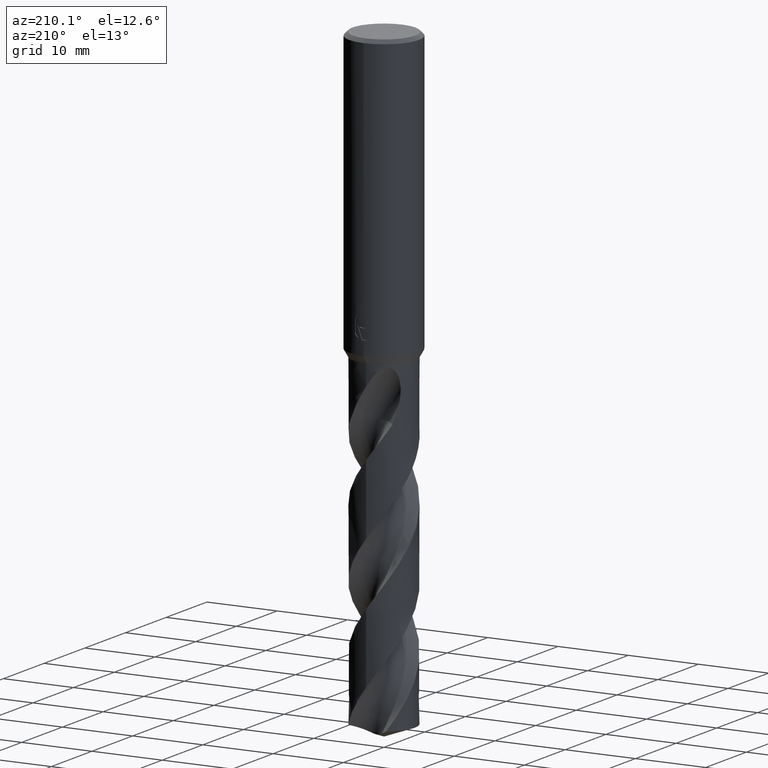
[diagram: clean part render]
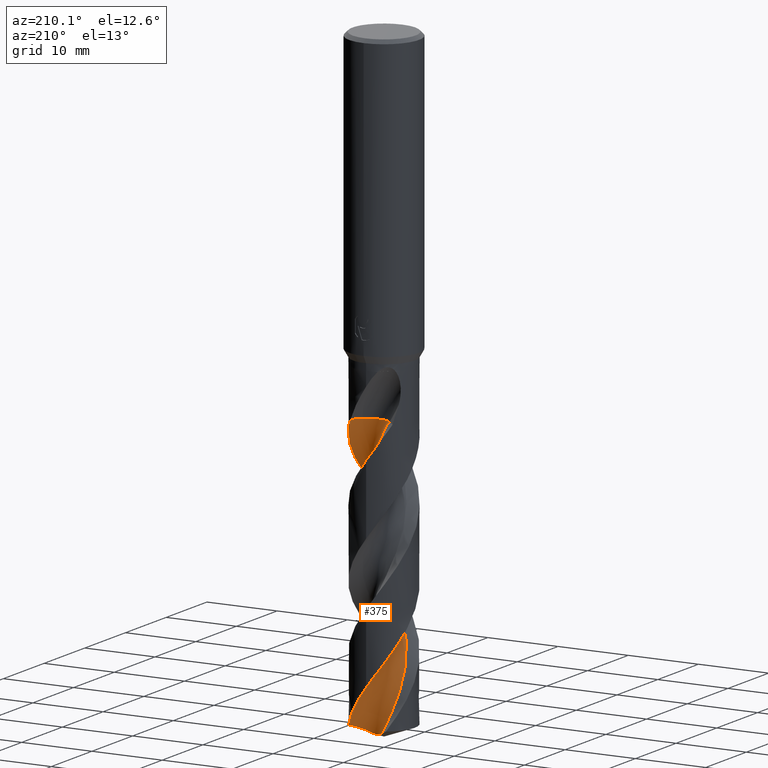
[diagram: same view with one face highlighted and labeled with its STEP entity id]
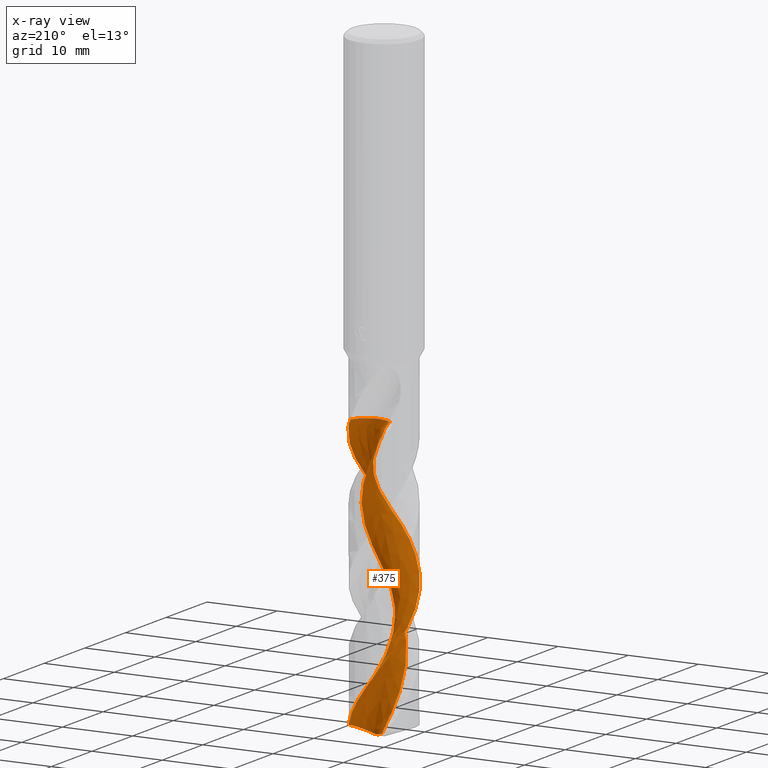
[diagram: x-ray of the same camera — body ghosted, the highlighted face saturated]
A machine part, auxiliary view. The second image highlights one B-rep face of the part: STEP entity #375.
The next image is the same camera in x-ray: the body ghosted, the highlighted face saturated — about 0% of this face is hidden behind the body in this view.
In plain terms, the highlighted face is a freeform B-spline surface patch.
Its self-contained STEP definition (entity closure, byte-faithful):
#289=VERTEX_POINT('',#783);
#345=VERTEX_POINT('',#843);
#375=ADVANCED_FACE('',(#876),#877,.F.);
#381=EDGE_CURVE('',#611,#657,#883,.T.);
#387=VERTEX_POINT('',#891);
#395=EDGE_CURVE('',#345,#477,#899,.T.);
#427=VERTEX_POINT('',#935);
#441=EDGE_CURVE('',#289,#387,#950,.T.);
#477=VERTEX_POINT('',#988);
#525=EDGE_CURVE('',#427,#539,#1040,.T.);
#531=EDGE_CURVE('',#539,#345,#1046,.T.);
#539=VERTEX_POINT('',#1054);
#605=EDGE_CURVE('',#477,#289,#1125,.T.);
#611=VERTEX_POINT('',#1131);
#657=VERTEX_POINT('',#1182);
#685=EDGE_CURVE('',#657,#427,#1213,.T.);
#731=EDGE_CURVE('',#387,#611,#1265,.T.);
#783=CARTESIAN_POINT('',(-1.17501866008974,2.51387019027537,-87.9900096727659));
#843=CARTESIAN_POINT('',(-0.353185353426614,1.34132505732984,-48.6578));
#876=FACE_OUTER_BOUND('',#1869,.T.);
#877=B_SPLINE_SURFACE_WITH_KNOTS('',3,3,((#1870,#1871,#1872,#1873,#1874,#1875,#1876,#1877,#1878,#1879,#1880,#1881,#1882,#1883,#1884,#1885,#1886,#1887,#1888,#1889,#1890,#1891,#1892,#1893,#1894,#1895,#1896,#1897,#1898,#1899,#1900,#1901,#1902,#1903,#1904,#1905,#1906,#1907,#1908,#1909,#1910,#1911,#1912,#1913,#1914,#1915,#1916,#1917,#1918,#1919,#1920,#1921,#1922,#1923,#1924,#1925),(#1926,#1927,#1928,#1929,#1930,#1931,#1932,#1933,#1934,#1935,#1936,#1937,#1938,#1939,#1940,#1941,#1942,#1943,#1944,#1945,#1946,#1947,#1948,#1949,#1950,#1951,#1952,#1953,#1954,#1955,#1956,#1957,#1958,#1959,#1960,#1961,#1962,#1963,#1964,#1965,#1966,#1967,#1968,#1969,#1970,#1971,#1972,#1973,#1974,#1975,#1976,#1977,#1978,#1979,#1980,#1981),(#1982,#1983,#1984,#1985,#1986,#1987,#1988,#1989,#1990,#1991,#1992,#1993,#1994,#1995,#1996,#1997,#1998,#1999,#2000,#2001,#2002,#2003,#2004,#2005,#2006,#2007,#2008,#2009,#2010,#2011,#2012,#2013,#2014,#2015,#2016,#2017,#2018,#2019,#2020,#2021,#2022,#2023,#2024,#2025,#2026,#2027,#2028,#2029,#2030,#2031,#2032,#2033,#2034,#2035,#2036,#2037),(#2038,#2039,#2040,#2041,#2042,#2043,#2044,#2045,#2046,#2047,#2048,#2049,#2050,#2051,#2052,#2053,#2054,#2055,#2056,#2057,#2058,#2059,#2060,#2061,#2062,#2063,#2064,#2065,#2066,#2067,#2068,#2069,#2070,#2071,#2072,#2073,#2074,#2075,#2076,#2077,#2078,#2079,#2080,#2081,#2082,#2083,#2084,#2085,#2086,#2087,#2088,#2089,#2090,#2091,#2092,#2093),(#2094,#2095,#2096,#2097,#2098,#2099,#2100,#2101,#2102,#2103,#2104,#2105,#2106,#2107,#2108,#2109,#2110,#2111,#2112,#2113,#2114,#2115,#2116,#2117,#2118,#2119,#2120,#2121,#2122,#2123,#2124,#2125,#2126,#2127,#2128,#2129,#2130,#2131,#2132,#2133,#2134,#2135,#2136,#2137,#2138,#2139,#2140,#2141,#2142,#2143,#2144,#2145,#2146,#2147,#2148,#2149),(#2150,#2151,#2152,#2153,#2154,#2155,#2156,#2157,#2158,#2159,#2160,#2161,#2162,#2163,#2164,#2165,#2166,#2167,#2168,#2169,#2170,#2171,#2172,#2173,#2174,#2175,#2176,#2177,#2178,#2179,#2180,#2181,#2182,#2183,#2184,#2185,#2186,#2187,#2188,#2189,#2190,#2191,#2192,#2193,#2194,#2195,#2196,#2197,#2198,#2199,#2200,#2201,#2202,#2203,#2204,#2205),(#2206,#2207,#2208,#2209,#2210,#2211,#2212,#2213,#2214,#2215,#2216,#2217,#2218,#2219,#2220,#2221,#2222,#2223,#2224,#2225,#2226,#2227,#2228,#2229,#2230,#2231,#2232,#2233,#2234,#2235,#2236,#2237,#2238,#2239,#2240,#2241,#2242,#2243,#2244,#2245,#2246,#2247,#2248,#2249,#2250,#2251,#2252,#2253,#2254,#2255,#2256,#2257,#2258,#2259,#2260,#2261),(#2262,#2263,#2264,#2265,#2266,#2267,#2268,#2269,#2270,#2271,#2272,#2273,#2274,#2275,#2276,#2277,#2278,#2279,#2280,#2281,#2282,#2283,#2284,#2285,#2286,#2287,#2288,#2289,#2290,#2291,#2292,#2293,#2294,#2295,#2296,#2297,#2298,#2299,#2300,#2301,#2302,#2303,#2304,#2305,#2306,#2307,#2308,#2309,#2310,#2311,#2312,#2313,#2314,#2315,#2316,#2317),(#2318,#2319,#2320,#2321,#2322,#2323,#2324,#2325,#2326,#2327,#2328,#2329,#2330,#2331,#2332,#2333,#2334,#2335,#2336,#2337,#2338,#2339,#2340,#2341,#2342,#2343,#2344,#2345,#2346,#2347,#2348,#2349,#2350,#2351,#2352,#2353,#2354,#2355,#2356,#2357,#2358,#2359,#2360,#2361,#2362,#2363,#2364,#2365,#2366,#2367,#2368,#2369,#2370,#2371,#2372,#2373),(#2374,#2375,#2376,#2377,#2378,#2379,#2380,#2381,#2382,#2383,#2384,#2385,#2386,#2387,#2388,#2389,#2390,#2391,#2392,#2393,#2394,#2395,#2396,#2397,#2398,#2399,#2400,#2401,#2402,#2403,#2404,#2405,#2406,#2407,#2408,#2409,#2410,#2411,#2412,#2413,#2414,#2415,#2416,#2417,#2418,#2419,#2420,#2421,#2422,#2423,#2424,#2425,#2426,#2427,#2428,#2429),(#2430,#2431,#2432,#2433,#2434,#2435,#2436,#2437,#2438,#2439,#2440,#2441,#2442,#2443,#2444,#2445,#2446,#2447,#2448,#2449,#2450,#2451,#2452,#2453,#2454,#2455,#2456,#2457,#2458,#2459,#2460,#2461,#2462,#2463,#2464,#2465,#2466,#2467,#2468,#2469,#2470,#2471,#2472,#2473,#2474,#2475,#2476,#2477,#2478,#2479,#2480,#2481,#2482,#2483,#2484,#2485)),.UNSPECIFIED.,.F.,.F.,.F.,(4,1,1,1,1,1,1,1,4),(4,1,2,1,2,2,2,2,2,1,2,1,2,1,2,1,2,1,2,1,2,1,2,1,2,1,2,1,2,1,2,1,2,2,4),(3.46308721244757E-017,0.392701146002746,0.785402292005493,1.17810343800824,1.57080458401099,1.96350573001373,2.35620687601648,2.74890802201922,3.14160916802197),(0.0,0.904180802783714,1.80836160556743,2.71254240835114,3.61672321113486,5.42508481670228,7.23344642226971,9.04180802783714,10.8501696334046,12.658531238972,14.4668928445394,16.2752544501069,18.0836160556743,19.8919776612417,21.7003392668091,23.5087008723766,25.317062477944,27.1254240835114,28.9337856890788,30.7421472946463,32.5505089002137,34.3588705057811,36.1672321113486,37.975593716916,39.7839553224834,41.5923169280508,43.4006785336183,45.2090401391857,47.0174017447531,48.8257633503206,50.634124955888,52.4424865614554,54.2508481670228,56.0592097725903,57.8675713781577),.UNSPECIFIED.);
#883=B_SPLINE_CURVE_WITH_KNOTS('',3,(#2492,#2493,#2494,#2495,#2496,#2497,#2498,#2499,#2500,#2501,#2502,#2503,#2504,#2505,#2506,#2507,#2508,#2509,#2510,#2511,#2512,#2513,#2514,#2515,#2516,#2517,#2518,#2519,#2520,#2521,#2522,#2523,#2524,#2525,#2526,#2527,#2528,#2529,#2530,#2531,#2532,#2533,#2534,#2535,#2536,#2537,#2538,#2539,#2540,#2541,#2542,#2543,#2544,#2545,#2546,#2547,#2548,#2549,#2550,#2551,#2552,#2553,#2554,#2555,#2556,#2557,#2558,#2559,#2560,#2561,#2562,#2563,#2564,#2565,#2566,#2567,#2568,#2569,#2570,#2571,#2572,#2573),.UNSPECIFIED.,.F.,.F.,(4,2,2,2,2,2,2,2,2,2,2,2,2,2,2,2,2,2,2,2,2,2,2,2,2,2,2,2,2,2,2,2,2,2,2,2,2,2,2,2,4),(0.0,2.38158475155126,3.34370111018353,5.29067186178256,6.92036466557538,7.8318580498891,10.2543865236871,10.8557057970924,13.2841955630198,14.204163846204,16.7424903560817,17.0421551577618,19.3072950229589,20.4294385659862,22.8588911608126,23.4617969178492,25.8968159008622,26.8316102976643,28.1549824528321,29.377158813288,29.525532420683,31.6183888025982,33.3552376624124,35.4947608440602,36.0089061970866,38.2647980770541,39.4836777008711,40.1388972420984,41.1095081189943,42.8168045660494,45.2058561563298,45.278722332016,45.877221782044,46.5144959370816,46.6651789055228,46.9689588572249,47.1513541987364,47.327704703687,47.5742234442607,48.1053654664538,48.6820044692768),.UNSPECIFIED.);
#891=CARTESIAN_POINT('',(2.32866523279967E-010,1.49598930513475,-88.4555044221504));
#899=CIRCLE('',#2592,2.93333333);
#935=CARTESIAN_POINT('',(1.72244747526012E-012,-4.39994662907025,-63.1689129008052));
#950=B_SPLINE_CURVE_WITH_KNOTS('',3,(#2945,#2946,#2947,#2948,#2949,#2950,#2951,#2952,#2953,#2954,#2955,#2956,#2957,#2958,#2959,#2960,#2961,#2962,#2963,#2964),.UNSPECIFIED.,.F.,.F.,(4,2,2,2,2,2,2,2,2,4),(0.0,1.81223725163547,3.06223183210204,4.26605195730043,5.6200164094533,7.11389526076126,8.84394077373794,10.8175018849426,12.3151490378372,13.8168819852818),.UNSPECIFIED.);
#988=CARTESIAN_POINT('',(-2.07417988905281,2.1791534409472,-48.6578));
#1040=B_SPLINE_CURVE_WITH_KNOTS('',3,(#3593,#3594,#3595,#3596,#3597,#3598,#3599,#3600,#3601,#3602,#3603,#3604,#3605,#3606,#3607,#3608,#3609,#3610,#3611,#3612,#3613,#3614,#3615,#3616,#3617,#3618,#3619,#3620,#3621,#3622,#3623,#3624,#3625,#3626,#3627,#3628,#3629,#3630,#3631,#3632,#3633,#3634,#3635,#3636,#3637,#3638,#3639,#3640,#3641,#3642,#3643,#3644,#3645,#3646,#3647,#3648,#3649,#3650,#3651,#3652,#3653,#3654,#3655,#3656,#3657,#3658,#3659,#3660,#3661,#3662,#3663,#3664,#3665,#3666,#3667,#3668,#3669,#3670,#3671,#3672,#3673,#3674),.UNSPECIFIED.,.F.,.F.,(4,2,2,2,2,2,2,2,2,2,2,2,2,2,2,2,2,2,2,2,2,2,2,2,2,2,2,2,2,2,2,2,2,2,2,2,2,2,2,2,4),(0.0,2.38158475155126,3.34370111018353,5.29067186178256,6.92036466557538,7.8318580498891,10.2543865236871,10.8557057970924,13.2841955630198,14.204163846204,16.7424903560817,17.0421551577618,19.3072950229589,20.4294385659862,22.8588911608126,23.4617969178492,25.8968159008622,26.8316102976643,28.1549824528321,29.377158813288,29.525532420683,31.6183888025982,33.3552376624124,35.4947608440602,36.0089061970866,38.2647980770541,39.4836777008711,40.1388972420984,41.1095081189943,42.8168045660494,45.2058561563298,45.278722332016,45.877221782044,46.5144959370816,46.6651789055228,46.9689588572249,47.1513541987364,47.327704703687,47.5742234442607,48.1053654664538,48.6820044692768),.UNSPECIFIED.);
#1046=CIRCLE('',#3683,2.93333333);
#1054=CARTESIAN_POINT('',(2.80371770920414,3.39093144555015,-48.6578));
#1125=B_SPLINE_CURVE_WITH_KNOTS('',3,(#4588,#4589,#4590,#4591,#4592,#4593,#4594,#4595,#4596,#4597,#4598,#4599,#4600,#4601,#4602,#4603,#4604,#4605,#4606,#4607,#4608,#4609,#4610,#4611,#4612,#4613,#4614,#4615,#4616,#4617,#4618,#4619,#4620,#4621,#4622,#4623,#4624,#4625,#4626,#4627,#4628,#4629,#4630,#4631,#4632,#4633,#4634,#4635,#4636,#4637,#4638,#4639,#4640,#4641,#4642,#4643),.UNSPECIFIED.,.F.,.F.,(4,1,2,1,2,2,2,2,2,1,2,1,2,1,2,1,2,1,2,1,2,1,2,1,2,1,2,1,2,1,2,1,2,2,4),(0.0,0.904180802783714,1.80836160556743,2.71254240835114,3.61672321113486,5.42508481670228,7.23344642226971,9.04180802783714,10.8501696334046,12.658531238972,14.4668928445394,16.2752544501069,18.0836160556743,19.8919776612417,21.7003392668091,23.5087008723766,25.317062477944,27.1254240835114,28.9337856890788,30.7421472946463,32.5505089002137,34.3588705057811,36.1672321113486,37.975593716916,39.7839553224834,41.5923169280508,43.4006785336183,45.2090401391857,47.0174017447531,48.8257633503206,50.634124955888,52.4424865614554,54.2508481670228,56.0592097725903,57.8675713781577),.UNSPECIFIED.);
#1131=CARTESIAN_POINT('',(3.46915379840589,2.70646853353331,-87.3985309692287));
#1182=CARTESIAN_POINT('',(-5.598373851669E-015,4.39998803345578,-81.9658956842433));
#1213=B_SPLINE_CURVE_WITH_KNOTS('',3,(#4809,#4810,#4811,#4812,#4813,#4814,#4815,#4816,#4817,#4818,#4819,#4820,#4821,#4822,#4823,#4824,#4825,#4826,#4827,#4828,#4829,#4830,#4831,#4832,#4833,#4834,#4835,#4836,#4837,#4838,#4839,#4840,#4841,#4842,#4843,#4844,#4845,#4846,#4847,#4848,#4849,#4850,#4851,#4852,#4853,#4854,#4855,#4856,#4857,#4858,#4859,#4860,#4861,#4862,#4863,#4864,#4865,#4866,#4867,#4868,#4869,#4870,#4871,#4872,#4873,#4874,#4875,#4876,#4877,#4878,#4879,#4880,#4881,#4882,#4883,#4884,#4885,#4886,#4887,#4888,#4889,#4890),.UNSPECIFIED.,.F.,.F.,(4,2,2,2,2,2,2,2,2,2,2,2,2,2,2,2,2,2,2,2,2,2,2,2,2,2,2,2,2,2,2,2,2,2,2,2,2,2,2,2,4),(0.0,2.38158475155126,3.34370111018353,5.29067186178256,6.92036466557538,7.8318580498891,10.2543865236871,10.8557057970924,13.2841955630198,14.204163846204,16.7424903560817,17.0421551577618,19.3072950229589,20.4294385659862,22.8588911608126,23.4617969178492,25.8968159008622,26.8316102976643,28.1549824528321,29.377158813288,29.525532420683,31.6183888025982,33.3552376624124,35.4947608440602,36.0089061970866,38.2647980770541,39.4836777008711,40.1388972420984,41.1095081189943,42.8168045660494,45.2058561563298,45.278722332016,45.877221782044,46.5144959370816,46.6651789055228,46.9689588572249,47.1513541987364,47.327704703687,47.5742234442607,48.1053654664538,48.6820044692768),.UNSPECIFIED.);
#1265=B_SPLINE_CURVE_WITH_KNOTS('',3,(#5168,#5169,#5170,#5171,#5172,#5173,#5174,#5175,#5176,#5177,#5178,#5179,#5180,#5181,#5182,#5183,#5184,#5185,#5186,#5187),.UNSPECIFIED.,.F.,.F.,(4,2,2,2,2,2,2,2,2,4),(0.0,1.81223725163547,3.06223183210204,4.26605195730043,5.6200164094533,7.11389526076126,8.84394077373794,10.8175018849426,12.3151490378372,13.8168819852818),.UNSPECIFIED.);
#1869=EDGE_LOOP('',(#5370,#5371,#5372,#5373,#5374,#5375,#5376,#5377));
#1870=CARTESIAN_POINT('',(2.07417988905281,6.3275132190528,-48.6578));
#1871=CARTESIAN_POINT('',(2.29045887339922,6.31219314494635,-48.8675179982842));
#1872=CARTESIAN_POINT('',(2.72795988894873,6.23614305774731,-49.2904443951269));
#1873=CARTESIAN_POINT('',(3.15991191980638,6.03870602629806,-49.7146965551795));
#1874=CARTESIAN_POINT('',(3.57234818357346,5.76757357300788,-50.1323110039057));
#1875=CARTESIAN_POINT('',(3.96820839033116,5.48358813558088,-50.5486783406339));
#1876=CARTESIAN_POINT('',(4.33708441827559,5.18199629795653,-50.9679012492096));
#1877=CARTESIAN_POINT('',(4.87203890519574,4.72021920739671,-51.6018954564626));
#1878=CARTESIAN_POINT('',(5.19538388912799,4.37090941302989,-52.024041873465));
#1879=CARTESIAN_POINT('',(5.75097197328598,3.59559009733367,-52.8621973677095));
#1880=CARTESIAN_POINT('',(5.98976485350469,3.18134013715005,-53.2817799323982));
#1881=CARTESIAN_POINT('',(6.37632091240959,2.31275093787993,-54.123466205401));
#1882=CARTESIAN_POINT('',(6.5244173407548,1.85897686821109,-54.5439927978166));
#1883=CARTESIAN_POINT('',(6.71948940256,0.92804496037481,-55.3841116923357));
#1884=CARTESIAN_POINT('',(6.76893589413593,0.452711126163473,-55.8044150119381));
#1885=CARTESIAN_POINT('',(6.76236401181505,-0.499468978557284,-56.6451671820766));
#1886=CARTESIAN_POINT('',(6.66012492703473,-1.44850715798984,-57.4854549769197));
#1887=CARTESIAN_POINT('',(6.36328042355642,-2.35653535561272,-58.3266284700561));
#1888=CARTESIAN_POINT('',(5.96673980794255,-3.22268251685457,-59.1671170637246));
#1889=CARTESIAN_POINT('',(5.4843081385887,-4.04666539278032,-60.0071022249712));
#1890=CARTESIAN_POINT('',(4.84172731320438,-4.75375429747231,-60.8481973719202));
#1891=CARTESIAN_POINT('',(4.12564820491725,-5.38196586321038,-61.6888304809813));
#1892=CARTESIAN_POINT('',(3.34840802827442,-5.93651173887558,-62.5289382555391));
#1893=CARTESIAN_POINT('',(2.47279579061382,-6.31874066638498,-63.3700501213689));
#1894=CARTESIAN_POINT('',(1.56236173605255,-6.59891455794496,-64.2106314677358));
#1895=CARTESIAN_POINT('',(0.62625757809594,-6.78687616142092,-65.0507011849049));
#1896=CARTESIAN_POINT('',(-0.329114783983925,-6.77738151431571,-65.8918111047117));
#1897=CARTESIAN_POINT('',(-1.2744980177928,-6.6605022412093,-66.7324081230761));
#1898=CARTESIAN_POINT('',(-2.20556404521952,-6.44897189376006,-67.5724878743181));
#1899=CARTESIAN_POINT('',(-3.07340755851372,-6.04939162991264,-68.4135978900097));
#1900=CARTESIAN_POINT('',(-3.88820185118345,-5.55592551929358,-69.2541919056058));
#1901=CARTESIAN_POINT('',(-4.65120754796999,-4.98195363571787,-70.0942701364664));
#1902=CARTESIAN_POINT('',(-5.27958335774703,-4.2622603848828,-70.9353802426254));
#1903=CARTESIAN_POINT('',(-5.82113719932088,-3.47860406568112,-71.775974373907));
#1904=CARTESIAN_POINT('',(-6.28249577671825,-2.64268074099606,-72.6160525894268));
#1905=CARTESIAN_POINT('',(-6.56138775579429,-1.72888098622388,-73.4571631956526));
#1906=CARTESIAN_POINT('',(-6.73488833059729,-0.79224312078022,-74.2977584802339));
#1907=CARTESIAN_POINT('',(-6.81382646646958,0.159274364057886,-75.1378368277317));
#1908=CARTESIAN_POINT('',(-6.6944032532912,1.10719433649081,-75.9789432135504));
#1909=CARTESIAN_POINT('',(-6.46946968275962,2.03283290484609,-76.8195313325284));
#1910=CARTESIAN_POINT('',(-6.15216848031074,2.93335873058204,-77.6596087945639));
#1911=CARTESIAN_POINT('',(-5.65534060271289,3.74943223201159,-78.5007310978297));
#1912=CARTESIAN_POINT('',(-5.07134884731149,4.50198806656152,-79.34134401196));
#1913=CARTESIAN_POINT('',(-4.41335093046421,5.19381922413581,-80.1814207183025));
#1914=CARTESIAN_POINT('',(-3.62613377292873,5.73518664198861,-81.0224865207292));
#1915=CARTESIAN_POINT('',(-2.78539077692945,6.18301653389167,-81.8630184220517));
#1916=CARTESIAN_POINT('',(-1.90188892040866,6.5451804218187,-82.7031051613461));
#1917=CARTESIAN_POINT('',(-0.961904235778902,6.71680391723603,-83.5443400098506));
#1918=CARTESIAN_POINT('',(-0.0113790668394966,6.78078841111497,-84.3850919989871));
#1919=CARTESIAN_POINT('',(0.942732421065508,6.74930291610407,-85.2251350852483));
#1920=CARTESIAN_POINT('',(1.87038272022482,6.52266621589252,-86.0660202649503));
#1921=CARTESIAN_POINT('',(2.7641503162413,6.19485521443763,-86.906416759451));
#1922=CARTESIAN_POINT('',(3.19364657757786,5.98510100914899,-87.3267122315644));
#1923=CARTESIAN_POINT('',(3.99775613086307,5.47610608937582,-88.1671248178668));
#1924=CARTESIAN_POINT('',(4.37311456043286,5.18371499442702,-88.5865818159005));
#1925=CARTESIAN_POINT('',(4.7162664138336,4.85845575596925,-89.0066514025781));
#1926=CARTESIAN_POINT('',(2.34567949490584,6.05599094595573,-48.6578));
#1927=CARTESIAN_POINT('',(2.56156111903647,6.04027354667439,-48.8675064155172));
#1928=CARTESIAN_POINT('',(2.99254038527764,5.95751035448193,-49.2908111793054));
#1929=CARTESIAN_POINT('',(3.40494131424314,5.74257202056317,-49.7155647700166));
#1930=CARTESIAN_POINT('',(3.7897688869173,5.4506140781154,-50.1327805550058));
#1931=CARTESIAN_POINT('',(4.15886387915741,5.14933534290166,-50.5485983006806));
#1932=CARTESIAN_POINT('',(4.50366475895794,4.83581593250236,-50.9676848691215));
#1933=CARTESIAN_POINT('',(5.00463062446416,4.35901356307793,-51.6021826665597));
#1934=CARTESIAN_POINT('',(5.30302440415744,4.00128610551944,-52.0245810422732));
#1935=CARTESIAN_POINT('',(5.80429031683238,3.21432244898273,-52.8623939417126));
#1936=CARTESIAN_POINT('',(6.01614472202393,2.79732998760065,-53.2818785872379));
#1937=CARTESIAN_POINT('',(6.3489161928007,1.92881294453617,-54.1237176525479));
#1938=CARTESIAN_POINT('',(6.47028308618818,1.47787467719703,-54.544275801937));
#1939=CARTESIAN_POINT('',(6.61241469496328,0.558309656415189,-55.384328413104));
#1940=CARTESIAN_POINT('',(6.63619931379369,0.091378564639062,-55.8046326947499));
#1941=CARTESIAN_POINT('',(6.57988996830293,-0.838413202594239,-56.6454069686834));
#1942=CARTESIAN_POINT('',(6.43132150134598,-1.76029896175842,-57.4856522216216));
#1943=CARTESIAN_POINT('',(6.09456663660526,-2.63218097179082,-58.3269062172327));
#1944=CARTESIAN_POINT('',(5.66159949957019,-3.4573668996436,-59.1673801497917));
#1945=CARTESIAN_POINT('',(5.14791362611002,-4.23747768779832,-60.0072807063316));
#1946=CARTESIAN_POINT('',(4.48372775237368,-4.89525488400011,-60.8484455164639));
#1947=CARTESIAN_POINT('',(3.75119335691518,-5.47123748100383,-61.6890840919042));
#1948=CARTESIAN_POINT('',(2.96338946432692,-5.97299144942093,-62.5291242980531));
#1949=CARTESIAN_POINT('',(2.08823772097209,-6.30137946406649,-63.3703081384416));
#1950=CARTESIAN_POINT('',(1.18415981097406,-6.5271553416359,-64.2108877467802));
#1951=CARTESIAN_POINT('',(0.260018696978105,-6.66262217029621,-65.050884607787));
#1952=CARTESIAN_POINT('',(-0.672903964254672,-6.60418986538774,-65.8920662313889));
#1953=CARTESIAN_POINT('',(-1.59022897437014,-6.44027496412848,-66.7326636982766));
#1954=CARTESIAN_POINT('',(-2.4888989452517,-6.18573929393883,-67.5726719916882));
#1955=CARTESIAN_POINT('',(-3.31623376002594,-5.75069154344902,-68.4138537039963));
#1956=CARTESIAN_POINT('',(-4.08618150618131,-5.22578901481432,-69.2544477756579));
#1957=CARTESIAN_POINT('',(-4.80203169876835,-4.62583276742753,-70.0944543075106));
#1958=CARTESIAN_POINT('',(-5.37893319241628,-3.89035190705846,-70.9356361483527));
#1959=CARTESIAN_POINT('',(-5.86670353913785,-3.09636099147623,-71.7762303356998));
#1960=CARTESIAN_POINT('',(-6.27440273754808,-2.25602265205901,-72.6162368749522));
#1961=CARTESIAN_POINT('',(-6.49986716389675,-1.34887900021853,-73.4574192926057));
#1962=CARTESIAN_POINT('',(-6.62006444423698,-0.424817594890127,-74.2980147453833));
#1963=CARTESIAN_POINT('',(-6.6482340438869,0.508772806967352,-75.1380214035476));
#1964=CARTESIAN_POINT('',(-6.48278333269414,1.42875818970188,-75.9791990204739));
#1965=CARTESIAN_POINT('',(-6.21435822593294,2.32111090276494,-76.8197864106013));
#1966=CARTESIAN_POINT('',(-5.85806857207751,3.18450647178474,-77.6597922254438));
#1967=CARTESIAN_POINT('',(-5.33067229749056,3.95625788148314,-78.5009879681955));
#1968=CARTESIAN_POINT('',(-4.72061507993045,4.66064469722357,-79.3416031810083));
#1969=CARTESIAN_POINT('',(-4.04223395857905,5.30264065141274,-80.1816075563202));
#1970=CARTESIAN_POINT('',(-3.24526165199048,5.79106473355283,-81.0227389641242));
#1971=CARTESIAN_POINT('',(-2.40044395385064,6.18429279961873,-81.8632634648102));
#1972=CARTESIAN_POINT('',(-1.51872867437769,6.49264791819947,-82.7032815832676));
#1973=CARTESIAN_POINT('',(-0.591515401826295,6.6119208790396,-83.5446049909215));
#1974=CARTESIAN_POINT('',(0.340346689970801,6.62433691098965,-84.3853746967331));
#1975=CARTESIAN_POINT('',(1.27078127103682,6.54449472615064,-85.2253335905321));
#1976=CARTESIAN_POINT('',(2.16550117111836,6.27551602085146,-86.0662570305814));
#1977=CARTESIAN_POINT('',(3.02143121905829,5.90852600784427,-86.9066328930047));
#1978=CARTESIAN_POINT('',(3.43016608621504,5.68139173006516,-87.32693604418));
#1979=CARTESIAN_POINT('',(4.18895672773991,5.14200599848935,-88.1673929221704));
#1980=CARTESIAN_POINT('',(4.54080791714791,4.83731733603183,-88.5867946153653));
#1981=CARTESIAN_POINT('',(4.85984277122846,4.50233476853697,-89.0068809095404));
#1982=CARTESIAN_POINT('',(2.78058981884299,5.40509524997723,-48.6578));
#1983=CARTESIAN_POINT('',(2.99551888777256,5.38874137859938,-48.8674873659031));
#1984=CARTESIAN_POINT('',(3.41078784595411,5.29514831374584,-49.2914144227172));
#1985=CARTESIAN_POINT('',(3.77713552159263,5.05298891246865,-49.7169926997248));
#1986=CARTESIAN_POINT('',(4.09847552919715,4.73036812573563,-50.1335528188792));
#1987=CARTESIAN_POINT('',(4.4071743356523,4.40515388578801,-50.548466658326));
#1988=CARTESIAN_POINT('',(4.69909194296928,4.07735805248284,-50.9673289948051));
#1989=CARTESIAN_POINT('',(5.12611986140078,3.58402754830919,-51.6026550322404));
#1990=CARTESIAN_POINT('',(5.37127441279567,3.21939022547318,-52.0254678056515));
#1991=CARTESIAN_POINT('',(5.75928823598195,2.43074496379938,-52.8627172380066));
#1992=CARTESIAN_POINT('',(5.91618648235122,2.01898111445418,-53.2820408198629));
#1993=CARTESIAN_POINT('',(6.14144011557402,1.17199648558194,-54.12413122479));
#1994=CARTESIAN_POINT('',(6.21048688392358,0.737357966786917,-54.544741264469));
#1995=CARTESIAN_POINT('',(6.25128008034915,-0.138425536215852,-55.3846848368714));
#1996=CARTESIAN_POINT('',(6.22709322343908,-0.578349892394439,-55.8049907357093));
#1997=CARTESIAN_POINT('',(6.08023292697895,-1.44359564129031,-56.6458013174019));
#1998=CARTESIAN_POINT('',(5.84982274070082,-2.29276446330656,-57.4859766312086));
#1999=CARTESIAN_POINT('',(5.44763795621307,-3.07649845681394,-58.3273630333842));
#2000=CARTESIAN_POINT('',(4.95812191312416,-3.80529363890653,-59.1678128299202));
#2001=CARTESIAN_POINT('',(4.39938716561066,-4.48525006054637,-60.0075742471874));
#2002=CARTESIAN_POINT('',(3.71160971739376,-5.03583307019103,-60.8488536526869));
#2003=CARTESIAN_POINT('',(2.9669412628457,-5.50083605012156,-61.6895011816174));
#2004=CARTESIAN_POINT('',(2.17900782200701,-5.8928276562527,-62.5294302812658));
#2005=CARTESIAN_POINT('',(1.32618740808973,-6.11373955188688,-63.3707325052672));
#2006=CARTESIAN_POINT('',(0.456451242114637,-6.23327002450834,-64.2113092312205));
#2007=CARTESIAN_POINT('',(-0.422893547028512,-6.26852659461591,-65.0511862680944));
#2008=CARTESIAN_POINT('',(-1.2914655413615,-6.12116705252636,-65.8924858668258));
#2009=CARTESIAN_POINT('',(-2.13398157862474,-5.87435839554707,-66.7330840027685));
#2010=CARTESIAN_POINT('',(-2.95077139214121,-5.54671297536509,-67.5729747948949));
#2011=CARTESIAN_POINT('',(-3.6830017502304,-5.05685398421547,-68.4142744907836));
#2012=CARTESIAN_POINT('',(-4.3507741808318,-4.48692570146191,-69.2548685441349));
#2013=CARTESIAN_POINT('',(-4.96200015663504,-3.85376372546492,-70.0947572275243));
#2014=CARTESIAN_POINT('',(-5.42969656366378,-3.10718372190598,-70.9360570499599));
#2015=CARTESIAN_POINT('',(-5.80581284904184,-2.31391571337218,-71.776651291102));
#2016=CARTESIAN_POINT('',(-6.10446021271838,-1.48608761125875,-72.6165399743086));
#2017=CARTESIAN_POINT('',(-6.22573891288461,-0.613499532751234,-73.4578404905329));
#2018=CARTESIAN_POINT('',(-6.24435324334248,0.264217471509624,-74.2984362178969));
#2019=CARTESIAN_POINT('',(-6.17813612799764,1.14177242710356,-75.1383249713941));
#2020=CARTESIAN_POINT('',(-5.93175831778061,1.98759694659447,-75.9796197411039));
#2021=CARTESIAN_POINT('',(-5.58960507255467,2.79609697658743,-76.8202059310352));
#2022=CARTESIAN_POINT('',(-5.17012027608112,3.56974336509099,-77.6600939543953));
#2023=CARTESIAN_POINT('',(-4.59922534651607,4.24071328122967,-78.5014103492432));
#2024=CARTESIAN_POINT('',(-3.95620324693332,4.83841712629513,-79.3420295183736));
#2025=CARTESIAN_POINT('',(-3.25688197464125,5.3726579423589,-80.1819146878392));
#2026=CARTESIAN_POINT('',(-2.46145709875993,5.75133838595914,-81.0231543778023));
#2027=CARTESIAN_POINT('',(-1.63020486279106,6.03376544862437,-81.8636662554835));
#2028=CARTESIAN_POINT('',(-0.773459814124214,6.23523613613733,-82.7035719371636));
#2029=CARTESIAN_POINT('',(0.107398146259597,6.25490879033802,-83.5450406315042));
#2030=CARTESIAN_POINT('',(0.981435050405734,6.17163123315472,-84.3858398111653));
#2031=CARTESIAN_POINT('',(1.84529605938219,6.00451149349947,-85.2256600127912));
#2032=CARTESIAN_POINT('',(2.65733115028294,5.66396182659602,-86.0666463756611));
#2033=CARTESIAN_POINT('',(3.4220219830869,5.23367690222792,-86.9069884210529));
#2034=CARTESIAN_POINT('',(3.78233137335303,4.98004584220339,-87.327304276568));
#2035=CARTESIAN_POINT('',(4.4384179609884,4.39791296925539,-88.1678337345161));
#2036=CARTESIAN_POINT('',(4.73837423204343,4.07798234336054,-88.5871445657823));
#2037=CARTESIAN_POINT('',(5.00531866219781,3.73314765243468,-89.0072583744818));
#2038=CARTESIAN_POINT('',(3.00969808470213,4.25333597591042,-48.6578));
#2039=CARTESIAN_POINT('',(3.22294160725529,4.23664681698995,-48.8674754747895));
#2040=CARTESIAN_POINT('',(3.61022017945081,4.13706294226772,-49.2917910010661));
#2041=CARTESIAN_POINT('',(3.89711618476508,3.88361239186001,-49.7178840996086));
#2042=CARTESIAN_POINT('',(4.11286352814432,3.55494118598734,-50.1340349089103));
#2043=CARTESIAN_POINT('',(4.32411658613136,3.23122513725714,-50.5483844808924));
#2044=CARTESIAN_POINT('',(4.53454627626958,2.91400065947977,-50.9671068366705));
#2045=CARTESIAN_POINT('',(4.84961306442996,2.44020763659108,-51.6029499116312));
#2046=CARTESIAN_POINT('',(5.01701522907637,2.09655508162085,-52.0260213703295));
#2047=CARTESIAN_POINT('',(5.24710370277232,1.37059252034919,-52.8629190635671));
#2048=CARTESIAN_POINT('',(5.33083789181774,0.997622924398853,-53.282142105049));
#2049=CARTESIAN_POINT('',(5.4194397256821,0.242201527955976,-54.1243893907835));
#2050=CARTESIAN_POINT('',(5.42533119638382,-0.139812181062228,-54.5450318226214));
#2051=CARTESIAN_POINT('',(5.35080901091137,-0.896743775500854,-55.3849073483621));
#2052=CARTESIAN_POINT('',(5.27564018214486,-1.27170045426424,-55.805214235901));
#2053=CARTESIAN_POINT('',(5.04033510083694,-1.99550874374929,-56.6460475029871));
#2054=CARTESIAN_POINT('',(4.73824112790492,-2.69691526074635,-57.4861791503629));
#2055=CARTESIAN_POINT('',(4.29597635758276,-3.32092185252697,-58.3276481875377));
#2056=CARTESIAN_POINT('',(3.78342066856544,-3.88366383829546,-59.1680829515288));
#2057=CARTESIAN_POINT('',(3.21974512906406,-4.3989524995081,-60.0077574882168));
#2058=CARTESIAN_POINT('',(2.56080637578952,-4.78742876224647,-60.8491084267658));
#2059=CARTESIAN_POINT('',(1.86302901302943,-5.09165581752797,-61.6897615619863));
#2060=CARTESIAN_POINT('',(1.13792549681438,-5.33144970029033,-62.5296212897214));
#2061=CARTESIAN_POINT('',(0.37775164982721,-5.41622629803477,-63.3709974198644));
#2062=CARTESIAN_POINT('',(-0.383398704501858,-5.40822160458884,-64.2115723466112));
#2063=CARTESIAN_POINT('',(-1.14313273042664,-5.33030897466348,-65.0513745940007));
#2064=CARTESIAN_POINT('',(-1.87147018856481,-5.09664280743332,-65.8927478041075));
#2065=CARTESIAN_POINT('',(-2.56272059757798,-4.77789324118501,-66.7333464052548));
#2066=CARTESIAN_POINT('',(-3.22406107258571,-4.3959261262316,-67.5731638166522));
#2067=CARTESIAN_POINT('',(-3.79301854274759,-3.8846973143101,-68.4145371583634));
#2068=CARTESIAN_POINT('',(-4.29333564372427,-3.31102033160017,-69.2551312247138));
#2069=CARTESIAN_POINT('',(-4.7404975634067,-2.69189730797129,-70.0949463229441));
#2070=CARTESIAN_POINT('',(-5.05047155376259,-1.99262400415344,-70.9363197992419));
#2071=CARTESIAN_POINT('',(-5.27225774140824,-1.2644531871585,-71.7769140783533));
#2072=CARTESIAN_POINT('',(-5.42694806232413,-0.516565013678572,-72.6167291814181));
#2073=CARTESIAN_POINT('',(-5.42366901259909,0.248323361052661,-73.4581034353771));
#2074=CARTESIAN_POINT('',(-5.3281002679393,1.0034961702646,-74.2986993173809));
#2075=CARTESIAN_POINT('',(-5.16323677410144,1.74920671077795,-75.1385144784416));
#2076=CARTESIAN_POINT('',(-4.84727161831151,2.44579291755243,-75.9798823836126));
#2077=CARTESIAN_POINT('',(-4.45107190578617,3.09575487724506,-76.8204678162988));
#2078=CARTESIAN_POINT('',(-3.99552368656732,3.70873749472541,-77.6602823021696));
#2079=CARTESIAN_POINT('',(-3.42219630860193,4.21506056526063,-78.5016740465708));
#2080=CARTESIAN_POINT('',(-2.79472871452871,4.64598531179477,-79.3422956408769));
#2081=CARTESIAN_POINT('',(-2.12824297893916,5.01886393876277,-80.1821064931836));
#2082=CARTESIAN_POINT('',(-1.39796126549036,5.24633535891007,-81.0234135740076));
#2083=CARTESIAN_POINT('',(-0.64911546860575,5.38298688804042,-81.8639178304121));
#2084=CARTESIAN_POINT('',(0.111665152920581,5.45065712587263,-82.7037530839764));
#2085=CARTESIAN_POINT('',(0.871102038893622,5.35890077366678,-83.5453126728004));
#2086=CARTESIAN_POINT('',(1.61006398327368,5.17619295707279,-84.3861300740122));
#2087=CARTESIAN_POINT('',(2.33155643718839,4.92632912621104,-85.2258638100244));
#2088=CARTESIAN_POINT('',(2.9879104765825,4.53405227167742,-86.0668894659849));
#2089=CARTESIAN_POINT('',(3.58981519972964,4.06842095466935,-86.9072103242349));
#2090=CARTESIAN_POINT('',(3.86779959288664,3.80586589056225,-87.3275340767252));
#2091=CARTESIAN_POINT('',(4.35700613218444,3.22344578219104,-88.168108987535));
#2092=CARTESIAN_POINT('',(4.57628981232341,2.9121812831913,-88.5873629669019));
#2093=CARTESIAN_POINT('',(4.76538474012161,2.58359483485865,-89.0074940102498));
#2094=CARTESIAN_POINT('',(2.7806049524126,3.1015736915747,-48.6578000000003));
#2095=CARTESIAN_POINT('',(2.99216292498153,3.08521979682067,-48.8674820783469));
#2096=CARTESIAN_POINT('',(3.35128910187965,2.99081276155886,-49.2915818787375));
#2097=CARTESIAN_POINT('',(3.56046230083187,2.75733464545475,-49.7173890838042));
#2098=CARTESIAN_POINT('',(3.67633806131841,2.46348287926811,-50.1337671939912));
#2099=CARTESIAN_POINT('',(3.79813574585284,2.17844245187995,-50.5484301147026));
#2100=CARTESIAN_POINT('',(3.93732625308633,1.90216867752498,-50.9672302078346));
#2101=CARTESIAN_POINT('',(4.15643113751698,1.48927188204684,-51.6027861550609));
#2102=CARTESIAN_POINT('',(4.26003062514523,1.19476081324416,-52.0257139634837));
#2103=CARTESIAN_POINT('',(4.36820249876821,0.587145696491542,-52.8628069847385));
#2104=CARTESIAN_POINT('',(4.39918797337055,0.278016122336196,-53.2820858550928));
#2105=CARTESIAN_POINT('',(4.39658008385288,-0.340517447376967,-54.1242460291838));
#2106=CARTESIAN_POINT('',(4.36426245614975,-0.649743675632398,-54.5448704672651));
#2107=CARTESIAN_POINT('',(4.2286856829968,-1.25274091766681,-55.3847837842758));
#2108=CARTESIAN_POINT('',(4.13127787258633,-1.54816529874324,-55.8050901184093));
#2109=CARTESIAN_POINT('',(3.86838654189656,-2.10745603086114,-56.6459107931008));
#2110=CARTESIAN_POINT('',(3.5566119106798,-2.64491570662067,-57.4860666924709));
#2111=CARTESIAN_POINT('',(3.13844337724267,-3.10601562318086,-58.3274898208127));
#2112=CARTESIAN_POINT('',(2.66814794990537,-3.50652762741183,-59.1679329607775));
#2113=CARTESIAN_POINT('',(2.16292369815186,-3.86779236744769,-60.0076557212634));
#2114=CARTESIAN_POINT('',(1.5926642017317,-4.11753786754459,-60.8489669487418));
#2115=CARTESIAN_POINT('',(0.99973510003535,-4.29117197471362,-61.6896169628323));
#2116=CARTESIAN_POINT('',(0.390922700237965,-4.4143976525642,-62.5295152214377));
#2117=CARTESIAN_POINT('',(-0.231560049978972,-4.40885623750939,-63.3708503043107));
#2118=CARTESIAN_POINT('',(-0.84358446090792,-4.32457870563821,-64.2114262348998));
#2119=CARTESIAN_POINT('',(-1.44950435476956,-4.18788469041041,-65.0512700180906));
#2120=CARTESIAN_POINT('',(-2.01525392431338,-3.92814736487652,-65.8926023302851));
#2121=CARTESIAN_POINT('',(-2.53922249953522,-3.60082022980586,-66.7332007010681));
#2122=CARTESIAN_POINT('',(-3.03615842831564,-3.22815464245285,-67.5730588415174));
#2123=CARTESIAN_POINT('',(-3.44609370829808,-2.75966479894502,-68.4143912929678));
#2124=CARTESIAN_POINT('',(-3.79026780900006,-2.24660714798869,-69.2549853521226));
#2125=CARTESIAN_POINT('',(-4.09122685088402,-1.70323936093767,-70.0948413068723));
#2126=CARTESIAN_POINT('',(-4.27358807886223,-1.10802969582219,-70.9361739024979));
#2127=CARTESIAN_POINT('',(-4.37770370334018,-0.499060632936049,-71.776768132504));
#2128=CARTESIAN_POINT('',(-4.42998694137555,0.119882413500935,-72.616624120468));
#2129=CARTESIAN_POINT('',(-4.35284674691638,0.737602992218261,-73.457957409759));
#2130=CARTESIAN_POINT('',(-4.19868253613289,1.33586364074147,-74.2985532184154));
#2131=CARTESIAN_POINT('',(-3.99313664357199,1.92201531993925,-75.1384092345625));
#2132=CARTESIAN_POINT('',(-3.66999250525946,2.45409344694993,-75.9797365383561));
#2133=CARTESIAN_POINT('',(-3.28453059083496,2.93690266915347,-76.8203223791537));
#2134=CARTESIAN_POINT('',(-2.85714781641512,3.38765040156384,-77.6601777098288));
#2135=CARTESIAN_POINT('',(-2.34458102694605,3.74092895994605,-78.5015276124857));
#2136=CARTESIAN_POINT('',(-1.79530780518437,4.02372252354524,-79.3421478537517));
#2137=CARTESIAN_POINT('',(-1.22090911429664,4.26008764538283,-80.1819999807742));
#2138=CARTESIAN_POINT('',(-0.608677185608332,4.37278962664816,-81.0232696364244));
#2139=CARTESIAN_POINT('',(0.0082489000158837,4.40629796558585,-81.8637781249632));
#2140=CARTESIAN_POINT('',(0.629166478327574,4.38707693962393,-82.7036524547082));
#2141=CARTESIAN_POINT('',(1.23378289456389,4.23883975291685,-83.5451616705292));
#2142=CARTESIAN_POINT('',(1.80990146812025,4.01596164774682,-84.3859688157821));
#2143=CARTESIAN_POINT('',(2.36819758808323,3.74413461573927,-85.2257506289465));
#2144=CARTESIAN_POINT('',(2.86092600905545,3.36364495969139,-86.0667545563748));
#2145=CARTESIAN_POINT('',(3.29890954481515,2.92765370154489,-86.9070870122088));
#2146=CARTESIAN_POINT('',(3.49742053255649,2.68835850546624,-87.3274064946464));
#2147=CARTESIAN_POINT('',(3.83234026794086,2.16953552071295,-88.1679561019079));
#2148=CARTESIAN_POINT('',(3.98040857749168,1.89714972445172,-88.5872416153308));
#2149=CARTESIAN_POINT('',(4.1037979887704,1.61336652348363,-89.0073631562604));
#2150=CARTESIAN_POINT('',(2.12818813658765,2.12515558373915,-48.6577999999999));
#2151=CARTESIAN_POINT('',(2.33831716793888,2.10975647299772,-48.867506171582));
#2152=CARTESIAN_POINT('',(2.67341493013525,2.03090578001404,-49.2908188905084));
#2153=CARTESIAN_POINT('',(2.81842690683615,1.84562302400457,-49.7155830194782));
#2154=CARTESIAN_POINT('',(2.85535686052992,1.62215956900534,-50.1327904269993));
#2155=CARTESIAN_POINT('',(2.90930846198611,1.40708411147774,-50.5485966173604));
#2156=CARTESIAN_POINT('',(2.99835415233277,1.19590595010917,-50.9676803206548));
#2157=CARTESIAN_POINT('',(3.15210583928551,0.875993139744359,-51.6021887038513));
#2158=CARTESIAN_POINT('',(3.21556584543897,0.65129885187644,-52.0245923797168));
#2159=CARTESIAN_POINT('',(3.25639074907199,0.199678402839253,-52.8623980704717));
#2160=CARTESIAN_POINT('',(3.26307345682839,-0.0302845382382166,-53.2818806521224));
#2161=CARTESIAN_POINT('',(3.22858391118075,-0.48744584230042,-54.1237229472287));
#2162=CARTESIAN_POINT('',(3.18882043723993,-0.714803252931246,-54.5442817536909));
#2163=CARTESIAN_POINT('',(3.05574497362091,-1.15221907330129,-55.3843329661706));
#2164=CARTESIAN_POINT('',(2.96822687936971,-1.3656547219213,-55.8046372777854));
#2165=CARTESIAN_POINT('',(2.7428076575318,-1.76239436679068,-56.6454120022077));
#2166=CARTESIAN_POINT('',(2.48482928965169,-2.14468234464274,-57.4856563733101));
#2167=CARTESIAN_POINT('',(2.15126474208532,-2.46449763127596,-58.3269120521546));
#2168=CARTESIAN_POINT('',(1.78209568581567,-2.73130117380073,-59.1673856838343));
#2169=CARTESIAN_POINT('',(1.38981602169153,-2.97263482171151,-60.0072844493056));
#2170=CARTESIAN_POINT('',(0.954575596768054,-3.12814625227822,-60.8484507469419));
#2171=CARTESIAN_POINT('',(0.508489558141724,-3.22125220341352,-61.6890894089315));
#2172=CARTESIAN_POINT('',(0.0517250213114714,-3.28128581332502,-62.5291282140635));
#2173=CARTESIAN_POINT('',(-0.408984552859692,-3.24499393309114,-63.3703135661115));
#2174=CARTESIAN_POINT('',(-0.854046183132171,-3.14731783658302,-64.2108931302345));
#2175=CARTESIAN_POINT('',(-1.29536563982396,-3.01517929562296,-65.0508884605117));
#2176=CARTESIAN_POINT('',(-1.70092674543601,-2.79357540578191,-65.892071604393));
#2177=CARTESIAN_POINT('',(-2.06706469967393,-2.52233992085072,-66.7326690608496));
#2178=CARTESIAN_POINT('',(-2.41567022387516,-2.22118298788489,-67.5726758569645));
#2179=CARTESIAN_POINT('',(-2.69504396370802,-1.85303422109964,-68.4138591016289));
#2180=CARTESIAN_POINT('',(-2.91815898146357,-1.45573508716704,-69.2544531342502));
#2181=CARTESIAN_POINT('',(-3.11303462752687,-1.03830565699502,-70.094458180154));
#2182=CARTESIAN_POINT('',(-3.21732083588542,-0.588073661828197,-70.9356415456288));
#2183=CARTESIAN_POINT('',(-3.25833988844042,-0.134263335349186,-71.7762356984969));
#2184=CARTESIAN_POINT('',(-3.26535672156077,0.326360314785743,-72.616240760342));
#2185=CARTESIAN_POINT('',(-3.17629678680659,0.779850193588682,-73.4574246709335));
#2186=CARTESIAN_POINT('',(-3.02804544761935,1.21071942895384,-74.2980201375234));
#2187=CARTESIAN_POINT('',(-2.84597471459341,1.6338894295599,-75.1380252812275));
#2188=CARTESIAN_POINT('',(-2.57915292459804,2.01123485125143,-75.9792043973668));
#2189=CARTESIAN_POINT('',(-2.26757829823323,2.34372440204374,-76.8197917731275));
#2190=CARTESIAN_POINT('',(-1.92830187290899,2.65536519280377,-77.6597960899999));
#2191=CARTESIAN_POINT('',(-1.5304383714284,2.89050146197281,-78.5009933502056));
#2192=CARTESIAN_POINT('',(-1.11009486234155,3.06636360469516,-79.3416086467642));
#2193=CARTESIAN_POINT('',(-0.673015174433873,3.21184707199788,-80.181611402714));
#2194=CARTESIAN_POINT('',(-0.213767453121558,3.26369199984019,-81.0227444154208));
#2195=CARTESIAN_POINT('',(0.241809439061914,3.25239224764145,-81.8632684712978));
#2196=CARTESIAN_POINT('',(0.700258462235707,3.20641769629381,-82.7032853948166));
#2197=CARTESIAN_POINT('',(1.14022526018975,3.06524665320608,-83.5446104998455));
#2198=CARTESIAN_POINT('',(1.55052375117038,2.86757381916786,-84.3853807006646));
#2199=CARTESIAN_POINT('',(1.94964116205663,2.63790823575986,-85.225337727952));
#2200=CARTESIAN_POINT('',(2.29571019300101,2.33092564521451,-86.0662620171687));
#2201=CARTESIAN_POINT('',(2.59359321625367,1.98504841651513,-86.9066374269128));
#2202=CARTESIAN_POINT('',(2.72758163173535,1.79765580886023,-87.3269408403677));
#2203=CARTESIAN_POINT('',(2.94429681918311,1.3966321463512,-88.1673984666869));
#2204=CARTESIAN_POINT('',(3.04144899886475,1.187418621034,-88.5867990492035));
#2205=CARTESIAN_POINT('',(3.12128003901487,0.970172716488872,-89.0068857340548));
#2206=CARTESIAN_POINT('',(1.151773214051,1.47273400076465,-48.6577999999997));
#2207=CARTESIAN_POINT('',(1.3609474569145,1.45876382866371,-48.8675440885156));
#2208=CARTESIAN_POINT('',(1.67979893338854,1.40348064842174,-49.2896181954323));
#2209=CARTESIAN_POINT('',(1.78397933804975,1.28727880850106,-49.7127408647607));
#2210=CARTESIAN_POINT('',(1.77490816777344,1.15905642097708,-50.1312533150439));
#2211=CARTESIAN_POINT('',(1.79295203535781,1.03458365638868,-50.5488586372486));
#2212=CARTESIAN_POINT('',(1.86058144921859,0.902735688544822,-50.9683886528479));
#2213=CARTESIAN_POINT('',(1.9895381766655,0.693738512783689,-51.6012485074347));
#2214=CARTESIAN_POINT('',(2.04263282452288,0.548907222172971,-52.0228273683987));
#2215=CARTESIAN_POINT('',(2.08093348084124,0.267179625744844,-52.8617545782656));
#2216=CARTESIAN_POINT('',(2.09545927517329,0.119657405218202,-53.2815577260337));
#2217=CARTESIAN_POINT('',(2.09326988068688,-0.176214903078427,-54.122899790948));
#2218=CARTESIAN_POINT('',(2.07795739234146,-0.325086082149201,-54.5433553137333));
#2219=CARTESIAN_POINT('',(2.01055832266858,-0.610481937933709,-55.3836235231307));
#2220=CARTESIAN_POINT('',(1.96355301865498,-0.751954591380787,-55.8039246531265));
#2221=CARTESIAN_POINT('',(1.83495939989099,-1.01285680871847,-56.6446270699865));
#2222=CARTESIAN_POINT('',(1.68606414761389,-1.27237195331063,-57.4850106656352));
#2223=CARTESIAN_POINT('',(1.48473101595356,-1.49403420079635,-58.326002830555));
#2224=CARTESIAN_POINT('',(1.26015869559761,-1.67600689087837,-59.1665244514814));
#2225=CARTESIAN_POINT('',(1.01812195653807,-1.84976090320229,-60.0067001965332));
#2226=CARTESIAN_POINT('',(0.743684780855508,-1.96988138596104,-60.8476383956469));
#2227=CARTESIAN_POINT('',(0.464080838111571,-2.04478377863104,-61.6882592299987));
#2228=CARTESIAN_POINT('',(0.171972771361389,-2.10462198177422,-62.5285191798942));
#2229=CARTESIAN_POINT('',(-0.127510307561179,-2.10182870460329,-63.3694689194185));
#2230=CARTESIAN_POINT('',(-0.413191150995135,-2.05566815729034,-64.2100541940385));
#2231=CARTESIAN_POINT('',(-0.704183049621769,-1.99072840161829,-65.0502880184945));
#2232=CARTESIAN_POINT('',(-0.976342616595258,-1.86565702865905,-65.8912364093793));
#2233=CARTESIAN_POINT('',(-1.21812968444959,-1.70664285877088,-66.7318324389345));
#2234=CARTESIAN_POINT('',(-1.4570611512381,-1.52831506783414,-67.5720731545221));
#2235=CARTESIAN_POINT('',(-1.65421100087354,-1.3028332938428,-68.4130216204206));
#2236=CARTESIAN_POINT('',(-1.8097812123675,-1.05880850687641,-69.2536155833564));
#2237=CARTESIAN_POINT('',(-1.95484332609718,-0.798327378257422,-70.0938552709587));
#2238=CARTESIAN_POINT('',(-2.04247861910807,-0.511915304708393,-70.9348037899086));
#2239=CARTESIAN_POINT('',(-2.08458104624503,-0.225598964149667,-71.7753978215019));
#2240=CARTESIAN_POINT('',(-2.11036363734834,0.0714339772403366,-72.6156374657976));
#2241=CARTESIAN_POINT('',(-2.07314006822872,0.368633152634437,-73.4565863362039));
#2242=CARTESIAN_POINT('',(-1.99440972573838,0.647115796778468,-74.2971812204903));
#2243=CARTESIAN_POINT('',(-1.89639781347646,0.928694056931736,-75.1374210762065));
#2244=CARTESIAN_POINT('',(-1.74082503013771,1.18463903022807,-75.978366979419));
#2245=CARTESIAN_POINT('',(-1.55503840990717,1.40652703369728,-76.8189567747232));
#2246=CARTESIAN_POINT('',(-1.35039570368571,1.62336680745493,-77.6591955580886));
#2247=CARTESIAN_POINT('',(-1.10371544967014,1.79324929143471,-78.5001525681984));
#2248=CARTESIAN_POINT('',(-0.843408445448928,1.91965928570287,-79.3407601391017));
#2249=CARTESIAN_POINT('',(-0.567973900826834,2.03372899896756,-80.1809999805359));
#2250=CARTESIAN_POINT('',(-0.273354120802303,2.08789429109448,-81.0219177161214));
#2251=CARTESIAN_POINT('',(0.0160083066022934,2.09694324210079,-81.8624666161885));
#2252=CARTESIAN_POINT('',(0.314117887844225,2.08842592615977,-82.7027076408391));
#2253=CARTESIAN_POINT('',(0.604672572163331,2.01679224454234,-83.5437432076396));
#2254=CARTESIAN_POINT('',(0.871419161520755,1.90586291747442,-84.3844551295029));
#2255=CARTESIAN_POINT('',(1.1396092344135,1.77606467586036,-85.2246879869058));
#2256=CARTESIAN_POINT('',(1.37831290784422,1.59311811207434,-86.0654869314888));
#2257=CARTESIAN_POINT('',(1.58124534361475,1.38410970058307,-86.9059299166566));
#2258=CARTESIAN_POINT('',(1.6754850993322,1.26936064024368,-87.326208005324));
#2259=CARTESIAN_POINT('',(1.82807375535782,1.02240439170887,-88.1665209786135));
#2260=CARTESIAN_POINT('',(1.90236063813428,0.891039240030462,-88.5861025623112));
#2261=CARTESIAN_POINT('',(1.9674118944898,0.751934856638199,-89.0061344275912));
#2262=CARTESIAN_POINT('',(1.20482273395783E-005,1.24363524523653,-48.6577999999999));
#2263=CARTESIAN_POINT('',(0.208851016348344,1.23135061977835,-48.867590054883));
#2264=CARTESIAN_POINT('',(0.521711708855018,1.20405815167153,-49.2881625923253));
#2265=CARTESIAN_POINT('',(0.61460649430976,1.16730571807195,-49.7092953141693));
#2266=CARTESIAN_POINT('',(0.599482208891166,1.14467743154445,-50.1293898741788));
#2267=CARTESIAN_POINT('',(0.619023377392953,1.11765148619644,-50.5491762817369));
#2268=CARTESIAN_POINT('',(0.697225518929107,1.06729087535028,-50.9692473680015));
#2269=CARTESIAN_POINT('',(0.845720379506919,0.970254894740623,-51.6001086999516));
#2270=CARTESIAN_POINT('',(0.919801847685999,0.903174284405114,-52.0206876444524));
#2271=CARTESIAN_POINT('',(1.02078525244902,0.779372808211956,-52.8609744698324));
#2272=CARTESIAN_POINT('',(1.0741059540409,0.705014410611136,-53.2811662449075));
#2273=CARTESIAN_POINT('',(1.16348104946078,0.54579279290114,-54.1219018747255));
#2274=CARTESIAN_POINT('',(1.20079389936031,0.460076313124494,-54.542232181599));
#2275=CARTESIAN_POINT('',(1.25224758024768,0.289995065910076,-55.3827634718897));
#2276=CARTESIAN_POINT('',(1.27021035747091,0.199503837531678,-55.8030607441499));
#2277=CARTESIAN_POINT('',(1.28305487910423,0.0270451645350949,-56.6436754885478));
#2278=CARTESIAN_POINT('',(1.28192249105993,-0.16078726810384,-57.4842278755461));
#2279=CARTESIAN_POINT('',(1.2403169765266,-0.342371113702615,-58.3249005822503));
#2280=CARTESIAN_POINT('',(1.18179797235345,-0.501305445614776,-59.1654803758483));
#2281=CARTESIAN_POINT('',(1.10442915114109,-0.670119754699542,-60.0059919051606));
#2282=CARTESIAN_POINT('',(0.992098290738617,-0.819080426506091,-60.8466535850962));
#2283=CARTESIAN_POINT('',(0.873269846605103,-0.940875210382941,-61.6872527987322));
#2284=CARTESIAN_POINT('',(0.733359115202408,-1.06354441863013,-62.5277808575351));
#2285=CARTESIAN_POINT('',(0.570010358090192,-1.15339890356334,-63.368444935778));
#2286=CARTESIAN_POINT('',(0.411863737525446,-1.21582515820951,-64.2090371676508));
#2287=CARTESIAN_POINT('',(0.23404030365309,-1.2704969971933,-65.0495600971755));
#2288=CARTESIAN_POINT('',(0.048185947055421,-1.28566084650241,-65.8902238931688));
#2289=CARTESIAN_POINT('',(-0.121661450498679,-1.27791283010937,-66.7308182090074));
#2290=CARTESIAN_POINT('',(-0.306272266177756,-1.2550348329502,-67.5713425089209));
#2291=CARTESIAN_POINT('',(-0.482053853341393,-1.19282598369433,-68.4120063097277));
#2292=CARTESIAN_POINT('',(-0.633876715113002,-1.11625651430393,-69.2526002501561));
#2293=CARTESIAN_POINT('',(-0.792978912059372,-1.01983941628981,-70.0931243617455));
#2294=CARTESIAN_POINT('',(-0.927922349994888,-0.89114916814665,-70.9337881494488));
#2295=CARTESIAN_POINT('',(-1.03512318707548,-0.759162349642271,-71.7743820899416));
#2296=CARTESIAN_POINT('',(-1.14084672963542,-0.60608597234444,-72.6149060979919));
#2297=CARTESIAN_POINT('',(-1.21132395406108,-0.433443418077721,-73.4555699797004));
#2298=CARTESIAN_POINT('',(-1.25513866263332,-0.269142817462941,-74.2961642421936));
#2299=CARTESIAN_POINT('',(-1.28897192681735,-0.086210082850516,-75.1366885669853));
#2300=CARTESIAN_POINT('',(-1.28263795644442,0.100149010477759,-75.9773517955202));
#2301=CARTESIAN_POINT('',(-1.25538980286328,0.26799184848671,-76.817944485809));
#2302=CARTESIAN_POINT('',(-1.21141118269638,0.44876927558738,-77.658467557605));
#2303=CARTESIAN_POINT('',(-1.12937764933402,0.61622087731105,-78.4991332555774));
#2304=CARTESIAN_POINT('',(-1.03584954843562,0.758186716954398,-79.3397315233532));
#2305=CARTESIAN_POINT('',(-0.921777051899589,0.905093091257483,-80.1802587091917));
#2306=CARTESIAN_POINT('',(-0.778365559856436,1.02440288637858,-81.0209155626577));
#2307=CARTESIAN_POINT('',(-0.634777969727107,1.11585942570255,-81.8614944707432));
#2308=CARTESIAN_POINT('',(-0.470468238900135,1.20330750950183,-82.7020072169328));
#2309=CARTESIAN_POINT('',(-0.291341264332387,1.25309584558752,-83.5426918671613));
#2310=CARTESIAN_POINT('',(-0.124023727270712,1.27724224627854,-84.3833329790767));
#2311=CARTESIAN_POINT('',(0.0614231154621321,1.28981316108192,-85.223900303821));
#2312=CARTESIAN_POINT('',(0.248401015607027,1.26254802933022,-86.0645473751822));
#2313=CARTESIAN_POINT('',(0.415988320877084,1.21632598050145,-86.9050721197262));
#2314=CARTESIAN_POINT('',(0.501304764286463,1.18390197627703,-87.3253195534093));
#2315=CARTESIAN_POINT('',(0.653607676032905,1.10382563974461,-88.1654572334287));
#2316=CARTESIAN_POINT('',(0.736561177417744,1.05313310247691,-88.5852581527889));
#2317=CARTESIAN_POINT('',(0.817861343416936,0.991878024571285,-89.0052236176603));
#2318=CARTESIAN_POINT('',(-1.15176192005621,1.47272431243302,-48.6578000000001));
#2319=CARTESIAN_POINT('',(-0.942587691629132,1.46212525596253,-48.8676370727945));
#2320=CARTESIAN_POINT('',(-0.624550561024418,1.46298564428149,-49.286673667718));
#2321=CARTESIAN_POINT('',(-0.511678170225502,1.50395649624628,-49.705770892184));
#2322=CARTESIAN_POINT('',(-0.491987057402184,1.58120083207965,-50.1274837744425));
#2323=CARTESIAN_POINT('',(-0.433772373807073,1.64363160639371,-50.5495011994347));
#2324=CARTESIAN_POINT('',(-0.314618715272198,1.66451088772412,-50.9701257386812));
#2325=CARTESIAN_POINT('',(-0.105227913014729,1.66343810146722,-51.5989428040117));
#2326=CARTESIAN_POINT('',(0.017997035585593,1.66016012183686,-52.0184989362818));
#2327=CARTESIAN_POINT('',(0.237326643209414,1.65827773100545,-52.8601765065626));
#2328=CARTESIAN_POINT('',(0.354487669790999,1.63666894148059,-53.2807658007687));
#2329=CARTESIAN_POINT('',(0.580751631998792,1.56865834198347,-54.1208811162609));
#2330=CARTESIAN_POINT('',(0.690852482563005,1.52115154077891,-54.5410833378211));
#2331=CARTESIAN_POINT('',(0.896241390649926,1.41212640812922,-55.3818837344406));
#2332=CARTESIAN_POINT('',(0.993737060654202,1.34387477562333,-55.8021770512908));
#2333=CARTESIAN_POINT('',(1.17110047865779,1.19900338575415,-56.6427021318661));
#2334=CARTESIAN_POINT('',(1.33391628375745,1.02085270314134,-57.4834271715733));
#2335=CARTESIAN_POINT('',(1.45521902724537,0.81517297804231,-58.3237730835834));
#2336=CARTESIAN_POINT('',(1.55893163679654,0.613978918738323,-59.1644124182052));
#2337=CARTESIAN_POINT('',(1.63558842480184,0.386713902574576,-60.0052673777124));
#2338=CARTESIAN_POINT('',(1.66198996174231,0.149073702035486,-60.8456462570799));
#2339=CARTESIAN_POINT('',(1.67375614722653,-0.0775696012273526,-61.6862233026142));
#2340=CARTESIAN_POINT('',(1.65041537524491,-0.316530135461409,-62.5270256383507));
#2341=CARTESIAN_POINT('',(1.5773859878425,-0.544076639758979,-63.3673975291255));
#2342=CARTESIAN_POINT('',(1.49551366186746,-0.755629739877608,-64.2079968426955));
#2343=CARTESIAN_POINT('',(1.37647313312109,-0.964116610221373,-65.0488155209315));
#2344=CARTESIAN_POINT('',(1.21669080824958,-1.14186974718096,-65.8891882000197));
#2345=CARTESIAN_POINT('',(1.05542192264949,-1.30140498553693,-66.7297807609601));
#2346=CARTESIAN_POINT('',(0.861510601245792,-1.44293297746655,-67.5705951241595));
#2347=CARTESIAN_POINT('',(0.6429902647145,-1.53974795622996,-68.4109677854396));
#2348=CARTESIAN_POINT('',(0.430548355539085,-1.61932316295136,-69.2515616462673));
#2349=CARTESIAN_POINT('',(0.195691265390299,-1.66911067922823,-70.0923767208269));
#2350=CARTESIAN_POINT('',(-0.0433162902988158,-1.66803478534366,-70.9327492881713));
#2351=CARTESIAN_POINT('',(-0.269719295088317,-1.65372016274711,-71.7733430782429));
#2352=CARTESIAN_POINT('',(-0.504388372551753,-1.60305260710802,-72.6141579879313));
#2353=CARTESIAN_POINT('',(-0.722034474795871,-1.50427243772993,-73.454530386447));
#2354=CARTESIAN_POINT('',(-0.922762394629128,-1.39856864049603,-74.2951239547633));
#2355=CARTESIAN_POINT('',(-1.11615560157966,-1.25631971056653,-75.1359392909514));
#2356=CARTESIAN_POINT('',(-1.27433120035718,-1.07714029770782,-75.9763133990191));
#2357=CARTESIAN_POINT('',(-1.41423729732546,-0.898560451456195,-76.8169089978054));
#2358=CARTESIAN_POINT('',(-1.53249511892574,-0.689618417769285,-77.6577228955106));
#2359=CARTESIAN_POINT('',(-1.60350774604195,-0.461406259471154,-78.4980906291602));
#2360=CARTESIAN_POINT('',(-1.65811252510923,-0.241246121160741,-79.3386793414504));
#2361=CARTESIAN_POINT('',(-1.68055529820181,-0.00225285387490445,-80.1795004449039));
#2362=CARTESIAN_POINT('',(-1.65191477194702,0.235107368547133,-81.0198905366061));
#2363=CARTESIAN_POINT('',(-1.61147197831079,0.45848419837456,-81.8605000034256));
#2364=CARTESIAN_POINT('',(-1.53405518087393,0.685795947094107,-82.7012908588399));
#2365=CARTESIAN_POINT('',(-1.41141009668377,0.890406007230466,-83.5416163291628));
#2366=CARTESIAN_POINT('',(-1.28426400458011,1.07739700086031,-84.3821852719019));
#2367=CARTESIAN_POINT('',(-1.1207816714389,1.2531654450401,-85.2230945189518));
#2368=CARTESIAN_POINT('',(-0.922017210139685,1.3895274656853,-86.063586321532));
#2369=CARTESIAN_POINT('',(-0.724790510757684,1.50722820297156,-86.9041946762054));
#2370=CARTESIAN_POINT('',(-0.61621439428151,1.55427843388777,-87.3244107770282));
#2371=CARTESIAN_POINT('',(-0.400314450846289,1.62849055279956,-88.1643691241664));
#2372=CARTESIAN_POINT('',(-0.278482466690055,1.64901424376182,-88.5843943751281));
#2373=CARTESIAN_POINT('',(-0.152378953073409,1.65346548954081,-89.0042919580163));
#2374=CARTESIAN_POINT('',(-1.80265761595516,1.90765383509359,-48.6577999999997));
#2375=CARTESIAN_POINT('',(-1.59284688541083,1.89800732884576,-48.8676643453713));
#2376=CARTESIAN_POINT('',(-1.26443943745979,1.91488548092267,-49.2858100366896));
#2377=CARTESIAN_POINT('',(-1.11943460803801,1.99862833213112,-49.7037265963187));
#2378=CARTESIAN_POINT('',(-1.05282225317548,2.12849792975372,-50.1263781671205));
#2379=CARTESIAN_POINT('',(-0.947967647036137,2.23615536738066,-50.5496896635742));
#2380=CARTESIAN_POINT('',(-0.78541847700685,2.29046167384773,-50.9706352254428));
#2381=CARTESIAN_POINT('',(-0.514041662229418,2.33295370023457,-51.5982665426567));
#2382=CARTESIAN_POINT('',(-0.344273246572663,2.35643271086439,-52.0172294119171));
#2383=CARTESIAN_POINT('',(-0.0209541362954714,2.39944347637685,-52.8597136511729));
#2384=CARTESIAN_POINT('',(0.148981595278504,2.3940345355011,-53.2805335168608));
#2385=CARTESIAN_POINT('',(0.482820885773835,2.3472748451063,-54.1202890501608));
#2386=CARTESIAN_POINT('',(0.647497674707436,2.30473050121413,-54.540416973322));
#2387=CARTESIAN_POINT('',(0.963266976979528,2.19403583673251,-55.3813734468996));
#2388=CARTESIAN_POINT('',(1.11541821152938,2.11919042161074,-55.8016644752294));
#2389=CARTESIAN_POINT('',(1.40114168936999,1.94933704631397,-56.6421375505983));
#2390=CARTESIAN_POINT('',(1.66739794616987,1.735322532001,-57.4829627315753));
#2391=CARTESIAN_POINT('',(1.88288343139283,1.47324171432489,-58.3231190953912));
#2392=CARTESIAN_POINT('',(2.07572801011424,1.20463265147697,-59.1637929606443));
#2393=CARTESIAN_POINT('',(2.23233223426289,0.90207464590033,-60.0048471259231));
#2394=CARTESIAN_POINT('',(2.32155076120724,0.574426073260177,-60.8450619705188));
#2395=CARTESIAN_POINT('',(2.38699703572184,0.249892557316031,-61.685626155941));
#2396=CARTESIAN_POINT('',(2.40577967284719,-0.0904274499966313,-62.5265875923211));
#2397=CARTESIAN_POINT('',(2.35324713089706,-0.425816428831049,-63.3667899774893));
#2398=CARTESIAN_POINT('',(2.2803044246731,-0.748671147172393,-64.2073934328818));
#2399=CARTESIAN_POINT('',(2.15822504946874,-1.06688445508647,-65.0483836532749));
#2400=CARTESIAN_POINT('',(1.97301984463934,-1.35142274446131,-65.8885874145075));
#2401=CARTESIAN_POINT('',(1.77435684924252,-1.61617095605428,-66.7291790479953));
#2402=CARTESIAN_POINT('',(1.53277431262062,-1.85657857630164,-67.5701616136783));
#2403=CARTESIAN_POINT('',(1.24736232829726,-2.04042781479087,-68.4103653572126));
#2404=CARTESIAN_POINT('',(0.957751403668092,-2.20070240696408,-69.2509592634195));
#2405=CARTESIAN_POINT('',(0.638939516697905,-2.32120603509655,-70.0919430252649));
#2406=CARTESIAN_POINT('',(0.303285157111645,-2.37217493832428,-70.9321467369354));
#2407=CARTESIAN_POINT('',(-0.0265512614691501,-2.39992000201274,-71.7727403864155));
#2408=CARTESIAN_POINT('',(-0.366760319493797,-2.3794260922544,-72.6137240634146));
#2409=CARTESIAN_POINT('',(-0.693886889164396,-2.28858970953172,-73.4539273967038));
#2410=CARTESIAN_POINT('',(-1.00620191897896,-2.17894205140825,-74.2945205368857));
#2411=CARTESIAN_POINT('',(-1.30824222304893,-2.02104198622485,-75.1355047013471));
#2412=CARTESIAN_POINT('',(-1.56956578196425,-1.8043145914508,-75.9757110670628));
#2413=CARTESIAN_POINT('',(-1.80967763741082,-1.57647771771288,-76.8163084001443));
#2414=CARTESIAN_POINT('',(-2.02066630222372,-1.30880018612131,-77.6572909447779));
#2415=CARTESIAN_POINT('',(-2.17043401056155,-1.00412232294091,-78.4974858820921));
#2416=CARTESIAN_POINT('',(-2.29632016235523,-0.69801311853045,-79.3380690223188));
#2417=CARTESIAN_POINT('',(-2.37934506523249,-0.367478638145501,-80.179060653757));
#2418=CARTESIAN_POINT('',(-2.39127129797303,-0.0281344958627079,-81.0192959380881));
#2419=CARTESIAN_POINT('',(-2.38069657554158,0.302802192738957,-81.8599232211797));
#2420=CARTESIAN_POINT('',(-2.32111225389515,0.63841963209799,-82.7008752778449));
#2421=CARTESIAN_POINT('',(-2.19375445833439,0.95278919864464,-83.5409925654777));
#2422=CARTESIAN_POINT('',(-2.04980371896773,1.25031959061111,-84.3815194712612));
#2423=CARTESIAN_POINT('',(-1.85821359395942,1.53219971664142,-85.2226272227744));
#2424=CARTESIAN_POINT('',(-1.6104455568956,1.76632753803477,-86.0630287853308));
#2425=CARTESIAN_POINT('',(-1.35314487130974,1.9774214901044,-86.9036858161254));
#2426=CARTESIAN_POINT('',(-1.20996836963513,2.06748335292656,-87.3238836942983));
#2427=CARTESIAN_POINT('',(-0.915538903777183,2.22049199027984,-88.1637379394838));
#2428=CARTESIAN_POINT('',(-0.751594198027965,2.27495675670752,-88.5838934383141));
#2429=CARTESIAN_POINT('',(-0.581134708615169,2.30844419658204,-89.0037515609978));
#2430=CARTESIAN_POINT('',(-2.07417988905281,2.1791534409472,-48.6578));
#2431=CARTESIAN_POINT('',(-1.8639718333336,2.16990429841924,-48.8676759285766));
#2432=CARTESIAN_POINT('',(-1.52904319530745,2.19349609382863,-49.2854432245408));
#2433=CARTESIAN_POINT('',(-1.36448872133504,2.29474187642045,-49.7028583185072));
#2434=CARTESIAN_POINT('',(-1.27026942041603,2.44543927589953,-50.1259085793267));
#2435=CARTESIAN_POINT('',(-1.13865104008408,2.57039223924982,-50.549769710467));
#2436=CARTESIAN_POINT('',(-0.952027715852022,2.63662813252828,-50.9708516214104));
#2437=CARTESIAN_POINT('',(-0.646663541132786,2.69414827083588,-51.5979793116461));
#2438=CARTESIAN_POINT('',(-0.45194462553748,2.72604703102569,-52.0166901981807));
#2439=CARTESIAN_POINT('',(-0.0743043038976952,2.78070667167012,-52.8595170672823));
#2440=CARTESIAN_POINT('',(0.122569663456337,2.77804248387123,-53.2804348700056));
#2441=CARTESIAN_POINT('',(0.510193556096155,2.73121512250502,-54.1200375689493));
#2442=CARTESIAN_POINT('',(0.701600103378455,2.68583720563564,-54.5401339435775));
#2443=CARTESIAN_POINT('',(1.07031082580928,2.56378008326839,-55.3811567145235));
#2444=CARTESIAN_POINT('',(1.24812463473694,2.48053405999898,-55.8014467683676));
#2445=CARTESIAN_POINT('',(1.58358742590656,2.28829650656867,-56.6418977539579));
#2446=CARTESIAN_POINT('',(1.89617534399709,2.04713343306119,-57.4827654679866));
#2447=CARTESIAN_POINT('',(2.15157420824784,1.74890976660269,-58.3228413280686));
#2448=CARTESIAN_POINT('',(2.38084872137337,1.43934250490698,-59.1635298544311));
#2449=CARTESIAN_POINT('',(2.56871081507637,1.09291502592063,-60.0046686386494));
#2450=CARTESIAN_POINT('',(2.67953851163775,0.715956547267659,-60.8448137932684));
#2451=CARTESIAN_POINT('',(2.76144442540257,0.339195436192136,-61.6853725403441));
#2452=CARTESIAN_POINT('',(2.79079519018184,-0.053915586025855,-62.5264015288021));
#2453=CARTESIAN_POINT('',(2.73780665218788,-0.443145545982621,-63.3665319412588));
#2454=CARTESIAN_POINT('',(2.65851233569215,-0.820398768887024,-64.2071371346796));
#2455=CARTESIAN_POINT('',(2.52447430393613,-1.19110788320053,-65.0482002027563));
#2456=CARTESIAN_POINT('',(2.31682348386279,-1.52458568511769,-65.8883322968379));
#2457=CARTESIAN_POINT('',(2.09010618935252,-1.83637187961148,-66.7289234257368));
#2458=CARTESIAN_POINT('',(1.81613118746463,-2.11978751907803,-67.5699774966009));
#2459=CARTESIAN_POINT('',(1.49021346789624,-2.33910762499841,-68.4101095241635));
#2460=CARTESIAN_POINT('',(1.15575861781145,-2.53082238456275,-69.250703374305));
#2461=CARTESIAN_POINT('',(0.789793396822397,-2.67731430792373,-70.0917588545088));
#2462=CARTESIAN_POINT('',(0.402666044414476,-2.74407512300179,-70.9318907841035));
#2463=CARTESIAN_POINT('',(0.0190469859791691,-2.78215926830503,-71.7724844335836));
#2464=CARTESIAN_POINT('',(-0.374821076637305,-2.76608485936206,-72.6135397501468));
#2465=CARTESIAN_POINT('',(-0.755375755433507,-2.66859682498009,-73.453671280665));
#2466=CARTESIAN_POINT('',(-1.12099513093762,-2.54637716744696,-74.2942642526506));
#2467=CARTESIAN_POINT('',(-1.47380546223622,-2.37055424964033,-75.1353201117657));
#2468=CARTESIAN_POINT('',(-1.78115886463382,-2.12589611113904,-75.9754552411094));
#2469=CARTESIAN_POINT('',(-2.06476501753232,-1.86477701234535,-76.8160533030415));
#2470=CARTESIAN_POINT('',(-2.3147452486907,-1.5599724823157,-77.6571074862765));
#2471=CARTESIAN_POINT('',(-2.49508504349774,-1.21097507165671,-78.4972290205384));
#2472=CARTESIAN_POINT('',(-2.64704068715275,-0.856699034988435,-79.3378098060171));
#2473=CARTESIAN_POINT('',(-2.75045294617039,-0.476331047890566,-80.178873843695));
#2474=CARTESIAN_POINT('',(-2.77213875763076,-0.0840443795365639,-81.0190434200907));
#2475=CARTESIAN_POINT('',(-2.76564328564771,0.301493784493326,-81.8596782159496));
#2476=CARTESIAN_POINT('',(-2.70427688713766,0.690920145666587,-82.7006988152319));
#2477=CARTESIAN_POINT('',(-2.56415204658453,1.05764132240965,-83.5407275640097));
#2478=CARTESIAN_POINT('',(-2.40154253660123,1.40674171810427,-84.381236753118));
#2479=CARTESIAN_POINT('',(-2.18627954145254,1.7369805212975,-85.2224286739763));
#2480=CARTESIAN_POINT('',(-1.90558463932615,2.01345309661366,-86.0627920588931));
#2481=CARTESIAN_POINT('',(-1.61044967848309,2.2637292139159,-86.9034696096343));
#2482=CARTESIAN_POINT('',(-1.44651323297927,2.37117289146315,-87.323659807285));
#2483=CARTESIAN_POINT('',(-1.10676739232159,2.5545761110191,-88.1634698729133));
#2484=CARTESIAN_POINT('',(-0.919316465245742,2.62134041244946,-88.583680621754));
#2485=CARTESIAN_POINT('',(-0.72474079646964,2.66455319621238,-89.0035220369402));
#2492=CARTESIAN_POINT('',(3.4691537984059,2.7064685335333,-87.3985309692287));
#2493=CARTESIAN_POINT('',(3.18039644706853,3.07659567343066,-86.7583424761475));
#2494=CARTESIAN_POINT('',(2.83327123848192,3.39931179321442,-86.1197667479224));
#2495=CARTESIAN_POINT('',(2.28188978764063,3.76686784399536,-85.222612439169));
#2496=CARTESIAN_POINT('',(2.11660943128328,3.86214913267656,-84.9652324189114));
#2497=CARTESIAN_POINT('',(1.60007234031423,4.11682769845335,-84.1842782319817));
#2498=CARTESIAN_POINT('',(1.23406474656191,4.24089921043979,-83.6575946686901));
#2499=CARTESIAN_POINT('',(0.540356013476528,4.37855782838395,-82.6971696543465));
#2500=CARTESIAN_POINT('',(0.218539223104727,4.40632183614201,-82.2634895103946));
#2501=CARTESIAN_POINT('',(-0.283048252750093,4.39455999809895,-81.5807656363592));
#2502=CARTESIAN_POINT('',(-0.462163369724536,4.37933252780405,-81.334708969423));
#2503=CARTESIAN_POINT('',(-1.11221061153752,4.2837797062668,-80.4391901371984));
#2504=CARTESIAN_POINT('',(-1.56968669152961,4.1380361085482,-79.801418942155));
#2505=CARTESIAN_POINT('',(-2.100242668547,3.86818160520814,-78.9896284500561));
#2506=CARTESIAN_POINT('',(-2.20332936546526,3.8104015816171,-78.8277125177277));
#2507=CARTESIAN_POINT('',(-2.71098523386368,3.49835728108268,-78.0144343110683));
#2508=CARTESIAN_POINT('',(-3.07442594314562,3.18372152951735,-77.3756642795581));
#2509=CARTESIAN_POINT('',(-3.4962198974517,2.67750027629772,-76.4782900757237));
#2510=CARTESIAN_POINT('',(-3.60323629303814,2.53164631067567,-76.230570477048));
#2511=CARTESIAN_POINT('',(-3.97118211700218,1.95930757698793,-75.3036428898409));
#2512=CARTESIAN_POINT('',(-4.16731535044396,1.49706086256293,-74.6380051199287));
#2513=CARTESIAN_POINT('',(-4.29542393323612,0.955262765410728,-73.8769402174624));
#2514=CARTESIAN_POINT('',(-4.30779420033319,0.897840849224442,-73.7964911178208));
#2515=CARTESIAN_POINT('',(-4.40408256406251,0.402742124498966,-73.1073960588516));
#2516=CARTESIAN_POINT('',(-4.42235432045274,-0.0453339431856779,-72.5094885160724));
#2517=CARTESIAN_POINT('',(-4.34806606198611,-0.709218831594383,-71.6019702108282));
#2518=CARTESIAN_POINT('',(-4.30696178555613,-0.926491001657106,-71.2996287839045));
#2519=CARTESIAN_POINT('',(-4.12623312794869,-1.60054767225622,-70.3483114759951));
#2520=CARTESIAN_POINT('',(-3.92853087042089,-2.03806655566549,-69.7105620847118));
#2521=CARTESIAN_POINT('',(-3.59909165566834,-2.53380861801585,-68.898791785));
#2522=CARTESIAN_POINT('',(-3.52977999340848,-2.62950123691427,-68.7369106142035));
#2523=CARTESIAN_POINT('',(-3.1610833142839,-3.0976284657201,-67.9237096694803));
#2524=CARTESIAN_POINT('',(-2.80651167972177,-3.42219665742954,-67.284965794011));
#2525=CARTESIAN_POINT('',(-2.25290567876544,-3.78386822439993,-66.3843068208633));
#2526=CARTESIAN_POINT('',(-2.09346491531036,-3.87435774711817,-66.1332668210234));
#2527=CARTESIAN_POINT('',(-1.69513620076357,-4.06860421795955,-65.5296098591125));
#2528=CARTESIAN_POINT('',(-1.45172629592717,-4.1617253874523,-65.1781127836459));
#2529=CARTESIAN_POINT('',(-0.969540799331551,-4.29854136314215,-64.4990503349194));
#2530=CARTESIAN_POINT('',(-0.733736960187505,-4.34492746188682,-64.174295148199));
#2531=CARTESIAN_POINT('',(-0.46721238133018,-4.37516840264253,-63.8074672382665));
#2532=CARTESIAN_POINT('',(-0.438386538182742,-4.37815047170759,-63.7677795896039));
#2533=CARTESIAN_POINT('',(-0.00188024963702771,-4.41895046557763,-63.1680829621344));
#2534=CARTESIAN_POINT('',(0.409889869198096,-4.40008677424558,-62.6163469469507));
#2535=CARTESIAN_POINT('',(1.14971480861173,-4.26077748517724,-61.5954665651593));
#2536=CARTESIAN_POINT('',(1.47618786059476,-4.15889645572287,-61.1294872361844));
#2537=CARTESIAN_POINT('',(2.1709497292486,-3.85000789053291,-60.0956747742747));
#2538=CARTESIAN_POINT('',(2.52761809123781,-3.62571098131771,-59.5336720732338));
#2539=CARTESIAN_POINT('',(2.92343839489594,-3.28984346646158,-58.8253677008723));
#2540=CARTESIAN_POINT('',(2.99769859234366,-3.22231621543507,-58.6878005017614));
#2541=CARTESIAN_POINT('',(3.38513833369104,-2.8450359779971,-57.9489542114119));
#2542=CARTESIAN_POINT('',(3.65321021199562,-2.49175094229226,-57.3573928212274));
#2543=CARTESIAN_POINT('',(3.97868628182728,-1.89380162323564,-56.4334889174895));
#2544=CARTESIAN_POINT('',(4.07539038708545,-1.67550054017794,-56.1078971019618));
#2545=CARTESIAN_POINT('',(4.19611624244245,-1.3298049893589,-55.6094221736873));
#2546=CARTESIAN_POINT('',(4.2330454594721,-1.20711293217587,-55.4354327276328));
#2547=CARTESIAN_POINT('',(4.31129112931536,-0.898978379052373,-55.0031924148506));
#2548=CARTESIAN_POINT('',(4.34606393814583,-0.712150297465387,-54.7450079885075));
#2549=CARTESIAN_POINT('',(4.40841174392663,-0.191935294087614,-54.0332004198417));
#2550=CARTESIAN_POINT('',(4.41024669359225,0.143056223146941,-53.581492618463));
#2551=CARTESIAN_POINT('',(4.3238169896954,0.939177644855427,-52.4931800885886));
#2552=CARTESIAN_POINT('',(4.19943692295102,1.39764632219331,-51.8418914742962));
#2553=CARTESIAN_POINT('',(3.993824263967,1.84631505642651,-51.1909351453139));
#2554=CARTESIAN_POINT('',(3.98779969859159,1.85929108165607,-51.172105060962));
#2555=CARTESIAN_POINT('',(3.93071272711574,1.98067966752997,-50.9951644385671));
#2556=CARTESIAN_POINT('',(3.8760776626893,2.08539232217888,-50.8374409928236));
#2557=CARTESIAN_POINT('',(3.75665193347138,2.29395103211273,-50.5071780602227));
#2558=CARTESIAN_POINT('',(3.69204779071428,2.39622894512259,-50.3360203992345));
#2559=CARTESIAN_POINT('',(3.60959788260783,2.51611899020335,-50.1200242616536));
#2560=CARTESIAN_POINT('',(3.59374107320227,2.53871055179218,-50.0785898444302));
#2561=CARTESIAN_POINT('',(3.54567909252291,2.60585502877133,-49.9531117591768));
#2562=CARTESIAN_POINT('',(3.52525049002463,2.63333388693885,-49.8982681416123));
#2563=CARTESIAN_POINT('',(3.47599579132791,2.69771177254149,-49.7772461803035));
#2564=CARTESIAN_POINT('',(3.45694311084545,2.72209649798209,-49.7322700551899));
#2565=CARTESIAN_POINT('',(3.41820955939733,2.77056706400952,-49.6445161833988));
#2566=CARTESIAN_POINT('',(3.39860326206875,2.79459468605853,-49.6017896565207));
#2567=CARTESIAN_POINT('',(3.35011508972974,2.85270766350952,-49.5002082279802));
#2568=CARTESIAN_POINT('',(3.32071162520873,2.88691345860777,-49.4418365703216));
#2569=CARTESIAN_POINT('',(3.2240265216142,2.99579790138846,-49.2600199609514));
#2570=CARTESIAN_POINT('',(3.15270512974388,3.07106105490533,-49.1401870958067));
#2571=CARTESIAN_POINT('',(2.99131367862062,3.22879156292857,-48.8971019227308));
#2572=CARTESIAN_POINT('',(2.90094220867604,3.31054382539722,-48.7756247156479));
#2573=CARTESIAN_POINT('',(2.80371770920414,3.39093144555015,-48.6578));
#2592=AXIS2_PLACEMENT_3D('',#5405,#5406,#5407);
#2945=CARTESIAN_POINT('',(-1.17501866008955,2.51387019027537,-87.9900096727661));
#2946=CARTESIAN_POINT('',(-0.80299541054762,2.08189581233924,-88.1897804869168));
#2947=CARTESIAN_POINT('',(-0.377260883597098,1.73466840612265,-88.36894433677));
#2948=CARTESIAN_POINT('',(0.265922506821726,1.32774642089215,-88.5165222721554));
#2949=CARTESIAN_POINT('',(0.504609941428048,1.21101254068433,-88.5306470611463));
#2950=CARTESIAN_POINT('',(0.970966741355219,1.05811383436047,-88.4841976210846));
#2951=CARTESIAN_POINT('',(1.19157981880949,1.02414619047228,-88.4298976197838));
#2952=CARTESIAN_POINT('',(1.64147668093972,1.0273749754434,-88.2970018168524));
#2953=CARTESIAN_POINT('',(1.88626034358972,1.07378398160696,-88.2100821650264));
#2954=CARTESIAN_POINT('',(2.39270793575342,1.28225708478736,-88.012025142438));
#2955=CARTESIAN_POINT('',(2.63204894112304,1.44686158193718,-87.9071411485262));
#2956=CARTESIAN_POINT('',(3.07288137223497,1.88790754134304,-87.6877128452091));
#2957=CARTESIAN_POINT('',(3.25826324528889,2.17352585258122,-87.5758749846935));
#2958=CARTESIAN_POINT('',(3.53697787564819,2.84467083602568,-87.349556864223));
#2959=CARTESIAN_POINT('',(3.61157534710953,3.23292997037422,-87.2386130515547));
#2960=CARTESIAN_POINT('',(3.61771430587674,3.92499872064791,-87.0586419946886));
#2961=CARTESIAN_POINT('',(3.57943546595074,4.22454537225918,-86.9865484449242));
#2962=CARTESIAN_POINT('',(3.42685767570633,4.80852908730285,-86.8526400941439));
#2963=CARTESIAN_POINT('',(3.31269386337102,5.09165923761881,-86.791151843099));
#2964=CARTESIAN_POINT('',(3.1645966622351,5.35773533924272,-86.7351807769627));
#3593=CARTESIAN_POINT('',(3.4691537984059,2.7064685335333,-87.3985309692287));
#3594=CARTESIAN_POINT('',(3.18039644706853,3.07659567343066,-86.7583424761475));
#3595=CARTESIAN_POINT('',(2.83327123848192,3.39931179321442,-86.1197667479224));
#3596=CARTESIAN_POINT('',(2.28188978764063,3.76686784399536,-85.222612439169));
#3597=CARTESIAN_POINT('',(2.11660943128328,3.86214913267656,-84.9652324189114));
#3598=CARTESIAN_POINT('',(1.60007234031423,4.11682769845335,-84.1842782319817));
#3599=CARTESIAN_POINT('',(1.23406474656191,4.24089921043979,-83.6575946686901));
#3600=CARTESIAN_POINT('',(0.540356013476528,4.37855782838395,-82.6971696543465));
#3601=CARTESIAN_POINT('',(0.218539223104727,4.40632183614201,-82.2634895103946));
#3602=CARTESIAN_POINT('',(-0.283048252750093,4.39455999809895,-81.5807656363592));
#3603=CARTESIAN_POINT('',(-0.462163369724536,4.37933252780405,-81.334708969423));
#3604=CARTESIAN_POINT('',(-1.11221061153752,4.2837797062668,-80.4391901371984));
#3605=CARTESIAN_POINT('',(-1.56968669152961,4.1380361085482,-79.801418942155));
#3606=CARTESIAN_POINT('',(-2.100242668547,3.86818160520814,-78.9896284500561));
#3607=CARTESIAN_POINT('',(-2.20332936546526,3.8104015816171,-78.8277125177277));
#3608=CARTESIAN_POINT('',(-2.71098523386368,3.49835728108268,-78.0144343110683));
#3609=CARTESIAN_POINT('',(-3.07442594314562,3.18372152951735,-77.3756642795581));
#3610=CARTESIAN_POINT('',(-3.4962198974517,2.67750027629772,-76.4782900757237));
#3611=CARTESIAN_POINT('',(-3.60323629303814,2.53164631067567,-76.230570477048));
#3612=CARTESIAN_POINT('',(-3.97118211700218,1.95930757698793,-75.3036428898409));
#3613=CARTESIAN_POINT('',(-4.16731535044396,1.49706086256293,-74.6380051199287));
#3614=CARTESIAN_POINT('',(-4.29542393323612,0.955262765410728,-73.8769402174624));
#3615=CARTESIAN_POINT('',(-4.30779420033319,0.897840849224442,-73.7964911178208));
#3616=CARTESIAN_POINT('',(-4.40408256406251,0.402742124498966,-73.1073960588516));
#3617=CARTESIAN_POINT('',(-4.42235432045274,-0.0453339431856779,-72.5094885160724));
#3618=CARTESIAN_POINT('',(-4.34806606198611,-0.709218831594383,-71.6019702108282));
#3619=CARTESIAN_POINT('',(-4.30696178555613,-0.926491001657106,-71.2996287839045));
#3620=CARTESIAN_POINT('',(-4.12623312794869,-1.60054767225622,-70.3483114759951));
#3621=CARTESIAN_POINT('',(-3.92853087042089,-2.03806655566549,-69.7105620847118));
#3622=CARTESIAN_POINT('',(-3.59909165566834,-2.53380861801585,-68.898791785));
#3623=CARTESIAN_POINT('',(-3.52977999340848,-2.62950123691427,-68.7369106142035));
#3624=CARTESIAN_POINT('',(-3.1610833142839,-3.0976284657201,-67.9237096694803));
#3625=CARTESIAN_POINT('',(-2.80651167972177,-3.42219665742954,-67.284965794011));
#3626=CARTESIAN_POINT('',(-2.25290567876544,-3.78386822439993,-66.3843068208633));
#3627=CARTESIAN_POINT('',(-2.09346491531036,-3.87435774711817,-66.1332668210234));
#3628=CARTESIAN_POINT('',(-1.69513620076357,-4.06860421795955,-65.5296098591125));
#3629=CARTESIAN_POINT('',(-1.45172629592717,-4.1617253874523,-65.1781127836459));
#3630=CARTESIAN_POINT('',(-0.969540799331551,-4.29854136314215,-64.4990503349194));
#3631=CARTESIAN_POINT('',(-0.733736960187505,-4.34492746188682,-64.174295148199));
#3632=CARTESIAN_POINT('',(-0.46721238133018,-4.37516840264253,-63.8074672382665));
#3633=CARTESIAN_POINT('',(-0.438386538182742,-4.37815047170759,-63.7677795896039));
#3634=CARTESIAN_POINT('',(-0.00188024963702771,-4.41895046557763,-63.1680829621344));
#3635=CARTESIAN_POINT('',(0.409889869198096,-4.40008677424558,-62.6163469469507));
#3636=CARTESIAN_POINT('',(1.14971480861173,-4.26077748517724,-61.5954665651593));
#3637=CARTESIAN_POINT('',(1.47618786059476,-4.15889645572287,-61.1294872361844));
#3638=CARTESIAN_POINT('',(2.1709497292486,-3.85000789053291,-60.0956747742747));
#3639=CARTESIAN_POINT('',(2.52761809123781,-3.62571098131771,-59.5336720732338));
#3640=CARTESIAN_POINT('',(2.92343839489594,-3.28984346646158,-58.8253677008723));
#3641=CARTESIAN_POINT('',(2.99769859234366,-3.22231621543507,-58.6878005017614));
#3642=CARTESIAN_POINT('',(3.38513833369104,-2.8450359779971,-57.9489542114119));
#3643=CARTESIAN_POINT('',(3.65321021199562,-2.49175094229226,-57.3573928212274));
#3644=CARTESIAN_POINT('',(3.97868628182728,-1.89380162323564,-56.4334889174895));
#3645=CARTESIAN_POINT('',(4.07539038708545,-1.67550054017794,-56.1078971019618));
#3646=CARTESIAN_POINT('',(4.19611624244245,-1.3298049893589,-55.6094221736873));
#3647=CARTESIAN_POINT('',(4.2330454594721,-1.20711293217587,-55.4354327276328));
#3648=CARTESIAN_POINT('',(4.31129112931536,-0.898978379052373,-55.0031924148506));
#3649=CARTESIAN_POINT('',(4.34606393814583,-0.712150297465387,-54.7450079885075));
#3650=CARTESIAN_POINT('',(4.40841174392663,-0.191935294087614,-54.0332004198417));
#3651=CARTESIAN_POINT('',(4.41024669359225,0.143056223146941,-53.581492618463));
#3652=CARTESIAN_POINT('',(4.3238169896954,0.939177644855427,-52.4931800885886));
#3653=CARTESIAN_POINT('',(4.19943692295102,1.39764632219331,-51.8418914742962));
#3654=CARTESIAN_POINT('',(3.993824263967,1.84631505642651,-51.1909351453139));
#3655=CARTESIAN_POINT('',(3.98779969859159,1.85929108165607,-51.172105060962));
#3656=CARTESIAN_POINT('',(3.93071272711574,1.98067966752997,-50.9951644385671));
#3657=CARTESIAN_POINT('',(3.8760776626893,2.08539232217888,-50.8374409928236));
#3658=CARTESIAN_POINT('',(3.75665193347138,2.29395103211273,-50.5071780602227));
#3659=CARTESIAN_POINT('',(3.69204779071428,2.39622894512259,-50.3360203992345));
#3660=CARTESIAN_POINT('',(3.60959788260783,2.51611899020335,-50.1200242616536));
#3661=CARTESIAN_POINT('',(3.59374107320227,2.53871055179218,-50.0785898444302));
#3662=CARTESIAN_POINT('',(3.54567909252291,2.60585502877133,-49.9531117591768));
#3663=CARTESIAN_POINT('',(3.52525049002463,2.63333388693885,-49.8982681416123));
#3664=CARTESIAN_POINT('',(3.47599579132791,2.69771177254149,-49.7772461803035));
#3665=CARTESIAN_POINT('',(3.45694311084545,2.72209649798209,-49.7322700551899));
#3666=CARTESIAN_POINT('',(3.41820955939733,2.77056706400952,-49.6445161833988));
#3667=CARTESIAN_POINT('',(3.39860326206875,2.79459468605853,-49.6017896565207));
#3668=CARTESIAN_POINT('',(3.35011508972974,2.85270766350952,-49.5002082279802));
#3669=CARTESIAN_POINT('',(3.32071162520873,2.88691345860777,-49.4418365703216));
#3670=CARTESIAN_POINT('',(3.2240265216142,2.99579790138846,-49.2600199609514));
#3671=CARTESIAN_POINT('',(3.15270512974388,3.07106105490533,-49.1401870958067));
#3672=CARTESIAN_POINT('',(2.99131367862062,3.22879156292857,-48.8971019227308));
#3673=CARTESIAN_POINT('',(2.90094220867604,3.31054382539722,-48.7756247156479));
#3674=CARTESIAN_POINT('',(2.80371770920414,3.39093144555015,-48.6578));
#3683=AXIS2_PLACEMENT_3D('',#5568,#5569,#5570);
#4588=CARTESIAN_POINT('',(-2.07417988905281,2.1791534409472,-48.6578));
#4589=CARTESIAN_POINT('',(-1.8639718333336,2.16990429841924,-48.8676759285766));
#4590=CARTESIAN_POINT('',(-1.52904319530745,2.19349609382863,-49.2854432245408));
#4591=CARTESIAN_POINT('',(-1.36448872133504,2.29474187642045,-49.7028583185072));
#4592=CARTESIAN_POINT('',(-1.27026942041603,2.44543927589953,-50.1259085793267));
#4593=CARTESIAN_POINT('',(-1.13865104008408,2.57039223924982,-50.549769710467));
#4594=CARTESIAN_POINT('',(-0.952027715852022,2.63662813252828,-50.9708516214104));
#4595=CARTESIAN_POINT('',(-0.646663541132786,2.69414827083588,-51.5979793116461));
#4596=CARTESIAN_POINT('',(-0.45194462553748,2.72604703102569,-52.0166901981807));
#4597=CARTESIAN_POINT('',(-0.0743043038976952,2.78070667167012,-52.8595170672823));
#4598=CARTESIAN_POINT('',(0.122569663456337,2.77804248387123,-53.2804348700056));
#4599=CARTESIAN_POINT('',(0.510193556096155,2.73121512250502,-54.1200375689493));
#4600=CARTESIAN_POINT('',(0.701600103378455,2.68583720563564,-54.5401339435775));
#4601=CARTESIAN_POINT('',(1.07031082580928,2.56378008326839,-55.3811567145235));
#4602=CARTESIAN_POINT('',(1.24812463473694,2.48053405999898,-55.8014467683676));
#4603=CARTESIAN_POINT('',(1.58358742590656,2.28829650656867,-56.6418977539579));
#4604=CARTESIAN_POINT('',(1.89617534399709,2.04713343306119,-57.4827654679866));
#4605=CARTESIAN_POINT('',(2.15157420824784,1.74890976660269,-58.3228413280686));
#4606=CARTESIAN_POINT('',(2.38084872137337,1.43934250490698,-59.1635298544311));
#4607=CARTESIAN_POINT('',(2.56871081507637,1.09291502592063,-60.0046686386494));
#4608=CARTESIAN_POINT('',(2.67953851163775,0.715956547267659,-60.8448137932684));
#4609=CARTESIAN_POINT('',(2.76144442540257,0.339195436192136,-61.6853725403441));
#4610=CARTESIAN_POINT('',(2.79079519018184,-0.053915586025855,-62.5264015288021));
#4611=CARTESIAN_POINT('',(2.73780665218788,-0.443145545982621,-63.3665319412588));
#4612=CARTESIAN_POINT('',(2.65851233569215,-0.820398768887024,-64.2071371346796));
#4613=CARTESIAN_POINT('',(2.52447430393613,-1.19110788320053,-65.0482002027563));
#4614=CARTESIAN_POINT('',(2.31682348386279,-1.52458568511769,-65.8883322968379));
#4615=CARTESIAN_POINT('',(2.09010618935252,-1.83637187961148,-66.7289234257368));
#4616=CARTESIAN_POINT('',(1.81613118746463,-2.11978751907803,-67.5699774966009));
#4617=CARTESIAN_POINT('',(1.49021346789624,-2.33910762499841,-68.4101095241635));
#4618=CARTESIAN_POINT('',(1.15575861781145,-2.53082238456275,-69.250703374305));
#4619=CARTESIAN_POINT('',(0.789793396822397,-2.67731430792373,-70.0917588545088));
#4620=CARTESIAN_POINT('',(0.402666044414476,-2.74407512300179,-70.9318907841035));
#4621=CARTESIAN_POINT('',(0.0190469859791691,-2.78215926830503,-71.7724844335836));
#4622=CARTESIAN_POINT('',(-0.374821076637305,-2.76608485936206,-72.6135397501468));
#4623=CARTESIAN_POINT('',(-0.755375755433507,-2.66859682498009,-73.453671280665));
#4624=CARTESIAN_POINT('',(-1.12099513093762,-2.54637716744696,-74.2942642526506));
#4625=CARTESIAN_POINT('',(-1.47380546223622,-2.37055424964033,-75.1353201117657));
#4626=CARTESIAN_POINT('',(-1.78115886463382,-2.12589611113904,-75.9754552411094));
#4627=CARTESIAN_POINT('',(-2.06476501753232,-1.86477701234535,-76.8160533030415));
#4628=CARTESIAN_POINT('',(-2.3147452486907,-1.5599724823157,-77.6571074862765));
#4629=CARTESIAN_POINT('',(-2.49508504349774,-1.21097507165671,-78.4972290205384));
#4630=CARTESIAN_POINT('',(-2.64704068715275,-0.856699034988435,-79.3378098060171));
#4631=CARTESIAN_POINT('',(-2.75045294617039,-0.476331047890566,-80.178873843695));
#4632=CARTESIAN_POINT('',(-2.77213875763076,-0.0840443795365639,-81.0190434200907));
#4633=CARTESIAN_POINT('',(-2.76564328564771,0.301493784493326,-81.8596782159496));
#4634=CARTESIAN_POINT('',(-2.70427688713766,0.690920145666587,-82.7006988152319));
#4635=CARTESIAN_POINT('',(-2.56415204658453,1.05764132240965,-83.5407275640097));
#4636=CARTESIAN_POINT('',(-2.40154253660123,1.40674171810427,-84.381236753118));
#4637=CARTESIAN_POINT('',(-2.18627954145254,1.7369805212975,-85.2224286739763));
#4638=CARTESIAN_POINT('',(-1.90558463932615,2.01345309661366,-86.0627920588931));
#4639=CARTESIAN_POINT('',(-1.61044967848309,2.2637292139159,-86.9034696096343));
#4640=CARTESIAN_POINT('',(-1.44651323297927,2.37117289146315,-87.323659807285));
#4641=CARTESIAN_POINT('',(-1.10676739232159,2.5545761110191,-88.1634698729133));
#4642=CARTESIAN_POINT('',(-0.919316465245742,2.62134041244946,-88.583680621754));
#4643=CARTESIAN_POINT('',(-0.72474079646964,2.66455319621238,-89.0035220369402));
#4809=CARTESIAN_POINT('',(3.4691537984059,2.7064685335333,-87.3985309692287));
#4810=CARTESIAN_POINT('',(3.18039644706853,3.07659567343066,-86.7583424761475));
#4811=CARTESIAN_POINT('',(2.83327123848192,3.39931179321442,-86.1197667479224));
#4812=CARTESIAN_POINT('',(2.28188978764063,3.76686784399536,-85.222612439169));
#4813=CARTESIAN_POINT('',(2.11660943128328,3.86214913267656,-84.9652324189114));
#4814=CARTESIAN_POINT('',(1.60007234031423,4.11682769845335,-84.1842782319817));
#4815=CARTESIAN_POINT('',(1.23406474656191,4.24089921043979,-83.6575946686901));
#4816=CARTESIAN_POINT('',(0.540356013476528,4.37855782838395,-82.6971696543465));
#4817=CARTESIAN_POINT('',(0.218539223104727,4.40632183614201,-82.2634895103946));
#4818=CARTESIAN_POINT('',(-0.283048252750093,4.39455999809895,-81.5807656363592));
#4819=CARTESIAN_POINT('',(-0.462163369724536,4.37933252780405,-81.334708969423));
#4820=CARTESIAN_POINT('',(-1.11221061153752,4.2837797062668,-80.4391901371984));
#4821=CARTESIAN_POINT('',(-1.56968669152961,4.1380361085482,-79.801418942155));
#4822=CARTESIAN_POINT('',(-2.100242668547,3.86818160520814,-78.9896284500561));
#4823=CARTESIAN_POINT('',(-2.20332936546526,3.8104015816171,-78.8277125177277));
#4824=CARTESIAN_POINT('',(-2.71098523386368,3.49835728108268,-78.0144343110683));
#4825=CARTESIAN_POINT('',(-3.07442594314562,3.18372152951735,-77.3756642795581));
#4826=CARTESIAN_POINT('',(-3.4962198974517,2.67750027629772,-76.4782900757237));
#4827=CARTESIAN_POINT('',(-3.60323629303814,2.53164631067567,-76.230570477048));
#4828=CARTESIAN_POINT('',(-3.97118211700218,1.95930757698793,-75.3036428898409));
#4829=CARTESIAN_POINT('',(-4.16731535044396,1.49706086256293,-74.6380051199287));
#4830=CARTESIAN_POINT('',(-4.29542393323612,0.955262765410728,-73.8769402174624));
#4831=CARTESIAN_POINT('',(-4.30779420033319,0.897840849224442,-73.7964911178208));
#4832=CARTESIAN_POINT('',(-4.40408256406251,0.402742124498966,-73.1073960588516));
#4833=CARTESIAN_POINT('',(-4.42235432045274,-0.0453339431856779,-72.5094885160724));
#4834=CARTESIAN_POINT('',(-4.34806606198611,-0.709218831594383,-71.6019702108282));
#4835=CARTESIAN_POINT('',(-4.30696178555613,-0.926491001657106,-71.2996287839045));
#4836=CARTESIAN_POINT('',(-4.12623312794869,-1.60054767225622,-70.3483114759951));
#4837=CARTESIAN_POINT('',(-3.92853087042089,-2.03806655566549,-69.7105620847118));
#4838=CARTESIAN_POINT('',(-3.59909165566834,-2.53380861801585,-68.898791785));
#4839=CARTESIAN_POINT('',(-3.52977999340848,-2.62950123691427,-68.7369106142035));
#4840=CARTESIAN_POINT('',(-3.1610833142839,-3.0976284657201,-67.9237096694803));
#4841=CARTESIAN_POINT('',(-2.80651167972177,-3.42219665742954,-67.284965794011));
#4842=CARTESIAN_POINT('',(-2.25290567876544,-3.78386822439993,-66.3843068208633));
#4843=CARTESIAN_POINT('',(-2.09346491531036,-3.87435774711817,-66.1332668210234));
#4844=CARTESIAN_POINT('',(-1.69513620076357,-4.06860421795955,-65.5296098591125));
#4845=CARTESIAN_POINT('',(-1.45172629592717,-4.1617253874523,-65.1781127836459));
#4846=CARTESIAN_POINT('',(-0.969540799331551,-4.29854136314215,-64.4990503349194));
#4847=CARTESIAN_POINT('',(-0.733736960187505,-4.34492746188682,-64.174295148199));
#4848=CARTESIAN_POINT('',(-0.46721238133018,-4.37516840264253,-63.8074672382665));
#4849=CARTESIAN_POINT('',(-0.438386538182742,-4.37815047170759,-63.7677795896039));
#4850=CARTESIAN_POINT('',(-0.00188024963702771,-4.41895046557763,-63.1680829621344));
#4851=CARTESIAN_POINT('',(0.409889869198096,-4.40008677424558,-62.6163469469507));
#4852=CARTESIAN_POINT('',(1.14971480861173,-4.26077748517724,-61.5954665651593));
#4853=CARTESIAN_POINT('',(1.47618786059476,-4.15889645572287,-61.1294872361844));
#4854=CARTESIAN_POINT('',(2.1709497292486,-3.85000789053291,-60.0956747742747));
#4855=CARTESIAN_POINT('',(2.52761809123781,-3.62571098131771,-59.5336720732338));
#4856=CARTESIAN_POINT('',(2.92343839489594,-3.28984346646158,-58.8253677008723));
#4857=CARTESIAN_POINT('',(2.99769859234366,-3.22231621543507,-58.6878005017614));
#4858=CARTESIAN_POINT('',(3.38513833369104,-2.8450359779971,-57.9489542114119));
#4859=CARTESIAN_POINT('',(3.65321021199562,-2.49175094229226,-57.3573928212274));
#4860=CARTESIAN_POINT('',(3.97868628182728,-1.89380162323564,-56.4334889174895));
#4861=CARTESIAN_POINT('',(4.07539038708545,-1.67550054017794,-56.1078971019618));
#4862=CARTESIAN_POINT('',(4.19611624244245,-1.3298049893589,-55.6094221736873));
#4863=CARTESIAN_POINT('',(4.2330454594721,-1.20711293217587,-55.4354327276328));
#4864=CARTESIAN_POINT('',(4.31129112931536,-0.898978379052373,-55.0031924148506));
#4865=CARTESIAN_POINT('',(4.34606393814583,-0.712150297465387,-54.7450079885075));
#4866=CARTESIAN_POINT('',(4.40841174392663,-0.191935294087614,-54.0332004198417));
#4867=CARTESIAN_POINT('',(4.41024669359225,0.143056223146941,-53.581492618463));
#4868=CARTESIAN_POINT('',(4.3238169896954,0.939177644855427,-52.4931800885886));
#4869=CARTESIAN_POINT('',(4.19943692295102,1.39764632219331,-51.8418914742962));
#4870=CARTESIAN_POINT('',(3.993824263967,1.84631505642651,-51.1909351453139));
#4871=CARTESIAN_POINT('',(3.98779969859159,1.85929108165607,-51.172105060962));
#4872=CARTESIAN_POINT('',(3.93071272711574,1.98067966752997,-50.9951644385671));
#4873=CARTESIAN_POINT('',(3.8760776626893,2.08539232217888,-50.8374409928236));
#4874=CARTESIAN_POINT('',(3.75665193347138,2.29395103211273,-50.5071780602227));
#4875=CARTESIAN_POINT('',(3.69204779071428,2.39622894512259,-50.3360203992345));
#4876=CARTESIAN_POINT('',(3.60959788260783,2.51611899020335,-50.1200242616536));
#4877=CARTESIAN_POINT('',(3.59374107320227,2.53871055179218,-50.0785898444302));
#4878=CARTESIAN_POINT('',(3.54567909252291,2.60585502877133,-49.9531117591768));
#4879=CARTESIAN_POINT('',(3.52525049002463,2.63333388693885,-49.8982681416123));
#4880=CARTESIAN_POINT('',(3.47599579132791,2.69771177254149,-49.7772461803035));
#4881=CARTESIAN_POINT('',(3.45694311084545,2.72209649798209,-49.7322700551899));
#4882=CARTESIAN_POINT('',(3.41820955939733,2.77056706400952,-49.6445161833988));
#4883=CARTESIAN_POINT('',(3.39860326206875,2.79459468605853,-49.6017896565207));
#4884=CARTESIAN_POINT('',(3.35011508972974,2.85270766350952,-49.5002082279802));
#4885=CARTESIAN_POINT('',(3.32071162520873,2.88691345860777,-49.4418365703216));
#4886=CARTESIAN_POINT('',(3.2240265216142,2.99579790138846,-49.2600199609514));
#4887=CARTESIAN_POINT('',(3.15270512974388,3.07106105490533,-49.1401870958067));
#4888=CARTESIAN_POINT('',(2.99131367862062,3.22879156292857,-48.8971019227308));
#4889=CARTESIAN_POINT('',(2.90094220867604,3.31054382539722,-48.7756247156479));
#4890=CARTESIAN_POINT('',(2.80371770920414,3.39093144555015,-48.6578));
#5168=CARTESIAN_POINT('',(-1.17501866008955,2.51387019027537,-87.9900096727661));
#5169=CARTESIAN_POINT('',(-0.80299541054762,2.08189581233924,-88.1897804869168));
#5170=CARTESIAN_POINT('',(-0.377260883597098,1.73466840612265,-88.36894433677));
#5171=CARTESIAN_POINT('',(0.265922506821726,1.32774642089215,-88.5165222721554));
#5172=CARTESIAN_POINT('',(0.504609941428048,1.21101254068433,-88.5306470611463));
#5173=CARTESIAN_POINT('',(0.970966741355219,1.05811383436047,-88.4841976210846));
#5174=CARTESIAN_POINT('',(1.19157981880949,1.02414619047228,-88.4298976197838));
#5175=CARTESIAN_POINT('',(1.64147668093972,1.0273749754434,-88.2970018168524));
#5176=CARTESIAN_POINT('',(1.88626034358972,1.07378398160696,-88.2100821650264));
#5177=CARTESIAN_POINT('',(2.39270793575342,1.28225708478736,-88.012025142438));
#5178=CARTESIAN_POINT('',(2.63204894112304,1.44686158193718,-87.9071411485262));
#5179=CARTESIAN_POINT('',(3.07288137223497,1.88790754134304,-87.6877128452091));
#5180=CARTESIAN_POINT('',(3.25826324528889,2.17352585258122,-87.5758749846935));
#5181=CARTESIAN_POINT('',(3.53697787564819,2.84467083602568,-87.349556864223));
#5182=CARTESIAN_POINT('',(3.61157534710953,3.23292997037422,-87.2386130515547));
#5183=CARTESIAN_POINT('',(3.61771430587674,3.92499872064791,-87.0586419946886));
#5184=CARTESIAN_POINT('',(3.57943546595074,4.22454537225918,-86.9865484449242));
#5185=CARTESIAN_POINT('',(3.42685767570633,4.80852908730285,-86.8526400941439));
#5186=CARTESIAN_POINT('',(3.31269386337102,5.09165923761881,-86.791151843099));
#5187=CARTESIAN_POINT('',(3.1645966622351,5.35773533924272,-86.7351807769627));
#5370=ORIENTED_EDGE('',*,*,#441,.F.);
#5371=ORIENTED_EDGE('',*,*,#605,.F.);
#5372=ORIENTED_EDGE('',*,*,#395,.F.);
#5373=ORIENTED_EDGE('',*,*,#531,.F.);
#5374=ORIENTED_EDGE('',*,*,#525,.F.);
#5375=ORIENTED_EDGE('',*,*,#685,.F.);
#5376=ORIENTED_EDGE('',*,*,#381,.F.);
#5377=ORIENTED_EDGE('',*,*,#731,.F.);
#5405=CARTESIAN_POINT('',(1.71269515501595E-005,4.25331620304845,-48.6578));
#5406=DIRECTION('',(0.0,0.0,-1.0));
#5407=DIRECTION('',(0.707100942428954,0.70711261989593,0.0));
#5568=CARTESIAN_POINT('',(1.71269515501595E-005,4.25331620304845,-48.6578));
#5569=DIRECTION('',(0.0,0.0,-1.0));
#5570=DIRECTION('',(0.707100942428954,0.70711261989593,0.0));